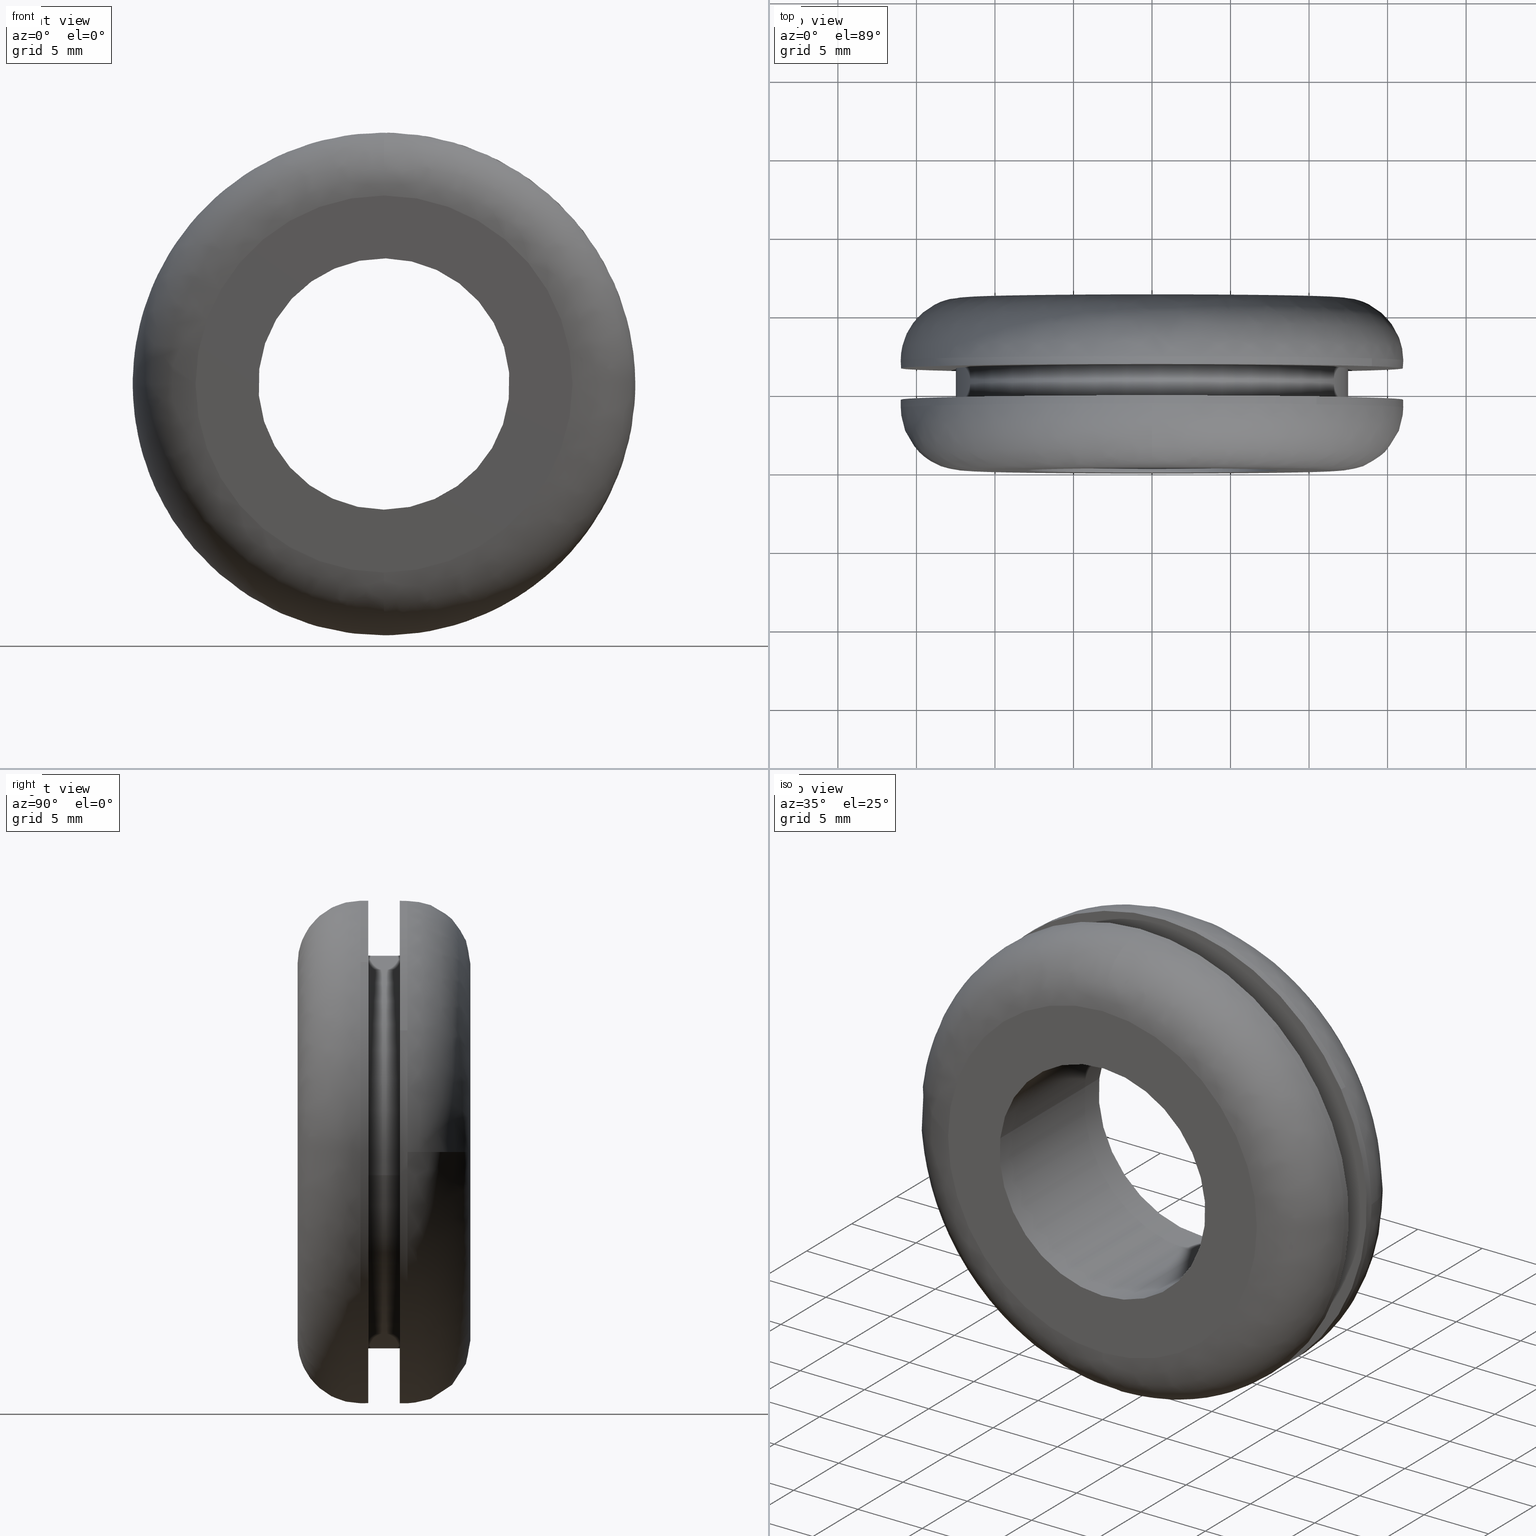
[diagram: canonical four-view strip — front | top / right | iso, engineering-drawing reading convention]
A machine part, canonical four-view strip (front | top / right | iso — engineering-drawing reading convention). The complete STEP part file that produces these views, byte-faithful:
ISO-10303-21;
HEADER;

FILE_DESCRIPTION( (''), '2;1');
FILE_NAME ('PC50.12492.TM_B_16_2_CRUL_4854.stp','2019-12-19T13:44:46',(''),(''),'spGate 15.6.1','','');

FILE_SCHEMA (('AUTOMOTIVE_DESIGN'));
ENDSEC;

DATA;
#10=(GEOMETRIC_REPRESENTATION_CONTEXT(3) GLOBAL_UNCERTAINTY_ASSIGNED_CONTEXT((#11)) GLOBAL_UNIT_ASSIGNED_CONTEXT((#12,#13,#14)) REPRESENTATION_CONTEXT('ID1','3D'));
#11=UNCERTAINTY_MEASURE_WITH_UNIT(LENGTH_MEASURE(0.01),#15,'DISTANCE_ACCURACY_VALUE','Maximum model space distance between geometric entities at asserted connectivities');
#12=(NAMED_UNIT(*) SI_UNIT($,.STERADIAN.) SOLID_ANGLE_UNIT());
#13=(CONVERSION_BASED_UNIT('DEGREE',#16) NAMED_UNIT(#17) PLANE_ANGLE_UNIT());
#14=(LENGTH_UNIT() NAMED_UNIT(*) SI_UNIT(.MILLI.,.METRE.));
#15=(LENGTH_UNIT() NAMED_UNIT(*) SI_UNIT(.MILLI.,.METRE.));
#16=PLANE_ANGLE_MEASURE_WITH_UNIT(PLANE_ANGLE_MEASURE(0.01745329252),#18);
#17=DIMENSIONAL_EXPONENTS(0.0,0.0,0.0,0.0,0.0,0.0,0.0);
#18=(NAMED_UNIT(*) PLANE_ANGLE_UNIT() SI_UNIT($,.RADIAN.));
#19=MANIFOLD_SOLID_BREP('TM_B_16_2',#31);
#20=ADVANCED_BREP_SHAPE_REPRESENTATION('',(#19),#10);
#21=APPLICATION_CONTEXT('');
#22=APPLICATION_PROTOCOL_DEFINITION('International Standard','automotive_design',1999,#21);
#23=PRODUCT_DEFINITION_CONTEXT('',#21,'design');
#24=PRODUCT_CONTEXT('',#21,'mechanical');
#25=PRODUCT('','','',(#24));
#26=PRODUCT_DEFINITION_FORMATION_WITH_SPECIFIED_SOURCE('','',#25,.NOT_KNOWN.);
#27=PRODUCT_RELATED_PRODUCT_CATEGORY('tool','tool',(#25));
#28=PRODUCT_DEFINITION('','',#26,#23);
#29=PRODUCT_DEFINITION_SHAPE('','',#28);
#30=SHAPE_DEFINITION_REPRESENTATION(#29,#20);
#31=CLOSED_SHELL('',(#40,#41,#42,#43,#44,#45,#46,#47,#48,#49,#50,#51,#52,#53,#54,#55));
#32=COLOUR_RGB('',0.00000000000E+000,0.00000000000E+000,0.00000000000E+000);
#33=FILL_AREA_STYLE_COLOUR('',#32);
#34=FILL_AREA_STYLE('',(#33));
#35=SURFACE_STYLE_FILL_AREA(#34);
#36=SURFACE_SIDE_STYLE('',(#35));
#37=SURFACE_STYLE_USAGE(.BOTH.,#36);
#38=PRESENTATION_STYLE_ASSIGNMENT((#37));
#39=STYLED_ITEM('',(#38),#19);
#40=ADVANCED_FACE('',(#57,#58),#56,.F.);
#41=ADVANCED_FACE('',(#68,#69),#67,.F.);
#42=ADVANCED_FACE('',(#79,#80),#78,.F.);
#43=ADVANCED_FACE('',(#90,#91),#89,.F.);
#44=ADVANCED_FACE('',(#101),#100,.T.);
#45=ADVANCED_FACE('',(#111),#110,.T.);
#46=ADVANCED_FACE('',(#121),#120,.T.);
#47=ADVANCED_FACE('',(#131),#130,.T.);
#48=ADVANCED_FACE('',(#141),#140,.F.);
#49=ADVANCED_FACE('',(#151),#150,.F.);
#50=ADVANCED_FACE('',(#161),#160,.T.);
#51=ADVANCED_FACE('',(#171),#170,.T.);
#52=ADVANCED_FACE('',(#181),#180,.T.);
#53=ADVANCED_FACE('',(#191),#190,.T.);
#54=ADVANCED_FACE('',(#201),#200,.T.);
#55=ADVANCED_FACE('',(#211),#210,.T.);
#56=PLANE('',#223);
#57=FACE_OUTER_BOUND('',#224,.T.);
#58=FACE_BOUND('',#225,.T.);
#59=COLOUR_RGB('',1.00000000000E+000,1.00000000000E+000,1.00000000000E+000);
#60=FILL_AREA_STYLE_COLOUR('',#59);
#61=FILL_AREA_STYLE('',(#60));
#62=SURFACE_STYLE_FILL_AREA(#61);
#63=SURFACE_SIDE_STYLE('',(#62));
#64=SURFACE_STYLE_USAGE(.BOTH.,#63);
#65=PRESENTATION_STYLE_ASSIGNMENT((#64));
#66=STYLED_ITEM('',(#65),#40);
#67=PLANE('',#229);
#68=FACE_OUTER_BOUND('',#230,.T.);
#69=FACE_BOUND('',#231,.T.);
#70=COLOUR_RGB('',1.00000000000E+000,1.00000000000E+000,1.00000000000E+000);
#71=FILL_AREA_STYLE_COLOUR('',#70);
#72=FILL_AREA_STYLE('',(#71));
#73=SURFACE_STYLE_FILL_AREA(#72);
#74=SURFACE_SIDE_STYLE('',(#73));
#75=SURFACE_STYLE_USAGE(.BOTH.,#74);
#76=PRESENTATION_STYLE_ASSIGNMENT((#75));
#77=STYLED_ITEM('',(#76),#41);
#78=PLANE('',#235);
#79=FACE_OUTER_BOUND('',#236,.T.);
#80=FACE_BOUND('',#237,.T.);
#81=COLOUR_RGB('',1.00000000000E+000,1.00000000000E+000,1.00000000000E+000);
#82=FILL_AREA_STYLE_COLOUR('',#81);
#83=FILL_AREA_STYLE('',(#82));
#84=SURFACE_STYLE_FILL_AREA(#83);
#85=SURFACE_SIDE_STYLE('',(#84));
#86=SURFACE_STYLE_USAGE(.BOTH.,#85);
#87=PRESENTATION_STYLE_ASSIGNMENT((#86));
#88=STYLED_ITEM('',(#87),#42);
#89=PLANE('',#241);
#90=FACE_OUTER_BOUND('',#242,.T.);
#91=FACE_BOUND('',#243,.T.);
#92=COLOUR_RGB('',1.00000000000E+000,1.00000000000E+000,1.00000000000E+000);
#93=FILL_AREA_STYLE_COLOUR('',#92);
#94=FILL_AREA_STYLE('',(#93));
#95=SURFACE_STYLE_FILL_AREA(#94);
#96=SURFACE_SIDE_STYLE('',(#95));
#97=SURFACE_STYLE_USAGE(.BOTH.,#96);
#98=PRESENTATION_STYLE_ASSIGNMENT((#97));
#99=STYLED_ITEM('',(#98),#43);
#100=CYLINDRICAL_SURFACE('',#247,1.60000000000E+001);
#101=FACE_OUTER_BOUND('',#248,.T.);
#102=COLOUR_RGB('',1.00000000000E+000,1.00000000000E+000,1.00000000000E+000);
#103=FILL_AREA_STYLE_COLOUR('',#102);
#104=FILL_AREA_STYLE('',(#103));
#105=SURFACE_STYLE_FILL_AREA(#104);
#106=SURFACE_SIDE_STYLE('',(#105));
#107=SURFACE_STYLE_USAGE(.BOTH.,#106);
#108=PRESENTATION_STYLE_ASSIGNMENT((#107));
#109=STYLED_ITEM('',(#108),#44);
#110=CYLINDRICAL_SURFACE('',#252,1.60000000000E+001);
#111=FACE_OUTER_BOUND('',#253,.T.);
#112=COLOUR_RGB('',1.00000000000E+000,1.00000000000E+000,1.00000000000E+000);
#113=FILL_AREA_STYLE_COLOUR('',#112);
#114=FILL_AREA_STYLE('',(#113));
#115=SURFACE_STYLE_FILL_AREA(#114);
#116=SURFACE_SIDE_STYLE('',(#115));
#117=SURFACE_STYLE_USAGE(.BOTH.,#116);
#118=PRESENTATION_STYLE_ASSIGNMENT((#117));
#119=STYLED_ITEM('',(#118),#45);
#120=CYLINDRICAL_SURFACE('',#257,1.25000000000E+001);
#121=FACE_OUTER_BOUND('',#258,.T.);
#122=COLOUR_RGB('',1.00000000000E+000,1.00000000000E+000,1.00000000000E+000);
#123=FILL_AREA_STYLE_COLOUR('',#122);
#124=FILL_AREA_STYLE('',(#123));
#125=SURFACE_STYLE_FILL_AREA(#124);
#126=SURFACE_SIDE_STYLE('',(#125));
#127=SURFACE_STYLE_USAGE(.BOTH.,#126);
#128=PRESENTATION_STYLE_ASSIGNMENT((#127));
#129=STYLED_ITEM('',(#128),#46);
#130=CYLINDRICAL_SURFACE('',#262,1.25000000000E+001);
#131=FACE_OUTER_BOUND('',#263,.T.);
#132=COLOUR_RGB('',1.00000000000E+000,1.00000000000E+000,1.00000000000E+000);
#133=FILL_AREA_STYLE_COLOUR('',#132);
#134=FILL_AREA_STYLE('',(#133));
#135=SURFACE_STYLE_FILL_AREA(#134);
#136=SURFACE_SIDE_STYLE('',(#135));
#137=SURFACE_STYLE_USAGE(.BOTH.,#136);
#138=PRESENTATION_STYLE_ASSIGNMENT((#137));
#139=STYLED_ITEM('',(#138),#47);
#140=CYLINDRICAL_SURFACE('',#267,8.00000000000E+000);
#141=FACE_OUTER_BOUND('',#268,.T.);
#142=COLOUR_RGB('',1.00000000000E+000,1.00000000000E+000,1.00000000000E+000);
#143=FILL_AREA_STYLE_COLOUR('',#142);
#144=FILL_AREA_STYLE('',(#143));
#145=SURFACE_STYLE_FILL_AREA(#144);
#146=SURFACE_SIDE_STYLE('',(#145));
#147=SURFACE_STYLE_USAGE(.BOTH.,#146);
#148=PRESENTATION_STYLE_ASSIGNMENT((#147));
#149=STYLED_ITEM('',(#148),#48);
#150=CYLINDRICAL_SURFACE('',#272,8.00000000000E+000);
#151=FACE_OUTER_BOUND('',#273,.T.);
#152=COLOUR_RGB('',1.00000000000E+000,1.00000000000E+000,1.00000000000E+000);
#153=FILL_AREA_STYLE_COLOUR('',#152);
#154=FILL_AREA_STYLE('',(#153));
#155=SURFACE_STYLE_FILL_AREA(#154);
#156=SURFACE_SIDE_STYLE('',(#155));
#157=SURFACE_STYLE_USAGE(.BOTH.,#156);
#158=PRESENTATION_STYLE_ASSIGNMENT((#157));
#159=STYLED_ITEM('',(#158),#49);
#160=CYLINDRICAL_SURFACE('',#277,1.60000000000E+001);
#161=FACE_OUTER_BOUND('',#278,.T.);
#162=COLOUR_RGB('',1.00000000000E+000,1.00000000000E+000,1.00000000000E+000);
#163=FILL_AREA_STYLE_COLOUR('',#162);
#164=FILL_AREA_STYLE('',(#163));
#165=SURFACE_STYLE_FILL_AREA(#164);
#166=SURFACE_SIDE_STYLE('',(#165));
#167=SURFACE_STYLE_USAGE(.BOTH.,#166);
#168=PRESENTATION_STYLE_ASSIGNMENT((#167));
#169=STYLED_ITEM('',(#168),#50);
#170=CYLINDRICAL_SURFACE('',#282,1.60000000000E+001);
#171=FACE_OUTER_BOUND('',#283,.T.);
#172=COLOUR_RGB('',1.00000000000E+000,1.00000000000E+000,1.00000000000E+000);
#173=FILL_AREA_STYLE_COLOUR('',#172);
#174=FILL_AREA_STYLE('',(#173));
#175=SURFACE_STYLE_FILL_AREA(#174);
#176=SURFACE_SIDE_STYLE('',(#175));
#177=SURFACE_STYLE_USAGE(.BOTH.,#176);
#178=PRESENTATION_STYLE_ASSIGNMENT((#177));
#179=STYLED_ITEM('',(#178),#51);
#180=( BOUNDED_SURFACE() B_SPLINE_SURFACE( 2,2,((#284,#285,#286,#287,#288),(#289,#290,#291,#292,#293),(#294,#295,#296,#297,#298),(#299,#300,#301,#302,#303),(#304,#305,#306,#307,#308)), .UNSPECIFIED.,.F.,.F.,.F.) B_SPLINE_SURFACE_WITH_KNOTS((3,2,3),(3,2,3),(0.00000000000E+000,5.00000000000E-001,1.00000000000E+000),(0.00000000000E+000,5.00000000000E-001,1.00000000000E+000), .UNSPECIFIED. ) GEOMETRIC_REPRESENTATION_ITEM() RATIONAL_B_SPLINE_SURFACE(((1.00000000000E+000,7.07106781087E-001,1.00000000000E+000,7.07106781087E-001,1.00000000000E+000),(7.07106781187E-001,4.99999999930E-001,7.07106781187E-001,4.99999999930E-001,7.07106781187E-001),(1.00000000000E+000,7.07106781087E-001,1.00000000000E+000,7.07106781087E-001,1.00000000000E+000),(7.07106781187E-001,4.99999999930E-001,7.07106781187E-001,4.99999999930E-001,7.07106781187E-001),(1.00000000000E+000,7.07106781087E-001,1.00000000000E+000,7.07106781087E-001,1.00000000000E+000))) REPRESENTATION_ITEM('') SURFACE() );
#181=FACE_OUTER_BOUND('',#309,.T.);
#182=COLOUR_RGB('',1.00000000000E+000,1.00000000000E+000,1.00000000000E+000);
#183=FILL_AREA_STYLE_COLOUR('',#182);
#184=FILL_AREA_STYLE('',(#183));
#185=SURFACE_STYLE_FILL_AREA(#184);
#186=SURFACE_SIDE_STYLE('',(#185));
#187=SURFACE_STYLE_USAGE(.BOTH.,#186);
#188=PRESENTATION_STYLE_ASSIGNMENT((#187));
#189=STYLED_ITEM('',(#188),#52);
#190=( BOUNDED_SURFACE() B_SPLINE_SURFACE( 2,2,((#310,#311,#312,#313,#314),(#315,#316,#317,#318,#319),(#320,#321,#322,#323,#324),(#325,#326,#327,#328,#329),(#330,#331,#332,#333,#334)), .UNSPECIFIED.,.F.,.F.,.F.) B_SPLINE_SURFACE_WITH_KNOTS((3,2,3),(3,2,3),(0.00000000000E+000,5.00000000000E-001,1.00000000000E+000),(0.00000000000E+000,5.00000000000E-001,1.00000000000E+000), .UNSPECIFIED. ) GEOMETRIC_REPRESENTATION_ITEM() RATIONAL_B_SPLINE_SURFACE(((1.00000000000E+000,7.07106781087E-001,1.00000000000E+000,7.07106781087E-001,1.00000000000E+000),(7.07106781187E-001,4.99999999930E-001,7.07106781187E-001,4.99999999930E-001,7.07106781187E-001),(1.00000000000E+000,7.07106781087E-001,1.00000000000E+000,7.07106781087E-001,1.00000000000E+000),(7.07106781187E-001,4.99999999930E-001,7.07106781187E-001,4.99999999930E-001,7.07106781187E-001),(1.00000000000E+000,7.07106781087E-001,1.00000000000E+000,7.07106781087E-001,1.00000000000E+000))) REPRESENTATION_ITEM('') SURFACE() );
#191=FACE_OUTER_BOUND('',#335,.T.);
#192=COLOUR_RGB('',1.00000000000E+000,1.00000000000E+000,1.00000000000E+000);
#193=FILL_AREA_STYLE_COLOUR('',#192);
#194=FILL_AREA_STYLE('',(#193));
#195=SURFACE_STYLE_FILL_AREA(#194);
#196=SURFACE_SIDE_STYLE('',(#195));
#197=SURFACE_STYLE_USAGE(.BOTH.,#196);
#198=PRESENTATION_STYLE_ASSIGNMENT((#197));
#199=STYLED_ITEM('',(#198),#53);
#200=( BOUNDED_SURFACE() B_SPLINE_SURFACE( 2,2,((#336,#337,#338,#339,#340),(#341,#342,#343,#344,#345),(#346,#347,#348,#349,#350),(#351,#352,#353,#354,#355),(#356,#357,#358,#359,#360)), .UNSPECIFIED.,.F.,.F.,.F.) B_SPLINE_SURFACE_WITH_KNOTS((3,2,3),(3,2,3),(0.00000000000E+000,5.00000000000E-001,1.00000000000E+000),(0.00000000000E+000,5.00000000000E-001,1.00000000000E+000), .UNSPECIFIED. ) GEOMETRIC_REPRESENTATION_ITEM() RATIONAL_B_SPLINE_SURFACE(((1.00000000000E+000,7.07106780924E-001,1.00000000000E+000,7.07106780924E-001,1.00000000000E+000),(7.07106781187E-001,4.99999999814E-001,7.07106781187E-001,4.99999999814E-001,7.07106781187E-001),(1.00000000000E+000,7.07106780924E-001,1.00000000000E+000,7.07106780924E-001,1.00000000000E+000),(7.07106781187E-001,4.99999999814E-001,7.07106781187E-001,4.99999999814E-001,7.07106781187E-001),(1.00000000000E+000,7.07106780924E-001,1.00000000000E+000,7.07106780924E-001,1.00000000000E+000))) REPRESENTATION_ITEM('') SURFACE() );
#201=FACE_OUTER_BOUND('',#361,.T.);
#202=COLOUR_RGB('',1.00000000000E+000,1.00000000000E+000,1.00000000000E+000);
#203=FILL_AREA_STYLE_COLOUR('',#202);
#204=FILL_AREA_STYLE('',(#203));
#205=SURFACE_STYLE_FILL_AREA(#204);
#206=SURFACE_SIDE_STYLE('',(#205));
#207=SURFACE_STYLE_USAGE(.BOTH.,#206);
#208=PRESENTATION_STYLE_ASSIGNMENT((#207));
#209=STYLED_ITEM('',(#208),#54);
#210=( BOUNDED_SURFACE() B_SPLINE_SURFACE( 2,2,((#362,#363,#364,#365,#366),(#367,#368,#369,#370,#371),(#372,#373,#374,#375,#376),(#377,#378,#379,#380,#381),(#382,#383,#384,#385,#386)), .UNSPECIFIED.,.F.,.F.,.F.) B_SPLINE_SURFACE_WITH_KNOTS((3,2,3),(3,2,3),(0.00000000000E+000,5.00000000000E-001,1.00000000000E+000),(0.00000000000E+000,5.00000000000E-001,1.00000000000E+000), .UNSPECIFIED. ) GEOMETRIC_REPRESENTATION_ITEM() RATIONAL_B_SPLINE_SURFACE(((1.00000000000E+000,7.07106780924E-001,1.00000000000E+000,7.07106780924E-001,1.00000000000E+000),(7.07106781187E-001,4.99999999814E-001,7.07106781187E-001,4.99999999814E-001,7.07106781187E-001),(1.00000000000E+000,7.07106780924E-001,1.00000000000E+000,7.07106780924E-001,1.00000000000E+000),(7.07106781187E-001,4.99999999814E-001,7.07106781187E-001,4.99999999814E-001,7.07106781187E-001),(1.00000000000E+000,7.07106780924E-001,1.00000000000E+000,7.07106780924E-001,1.00000000000E+000))) REPRESENTATION_ITEM('') SURFACE() );
#211=FACE_OUTER_BOUND('',#387,.T.);
#212=COLOUR_RGB('',1.00000000000E+000,1.00000000000E+000,1.00000000000E+000);
#213=FILL_AREA_STYLE_COLOUR('',#212);
#214=FILL_AREA_STYLE('',(#213));
#215=SURFACE_STYLE_FILL_AREA(#214);
#216=SURFACE_SIDE_STYLE('',(#215));
#217=SURFACE_STYLE_USAGE(.BOTH.,#216);
#218=PRESENTATION_STYLE_ASSIGNMENT((#217));
#219=STYLED_ITEM('',(#218),#55);
#220=CARTESIAN_POINT('',(-3.65275098356E+001,4.50000000000E+000,3.59301270626E+001));
#221=DIRECTION('',(0.00000000000E+000,-1.00000000000E+000,0.00000000000E+000));
#222=DIRECTION('',(0.00000000000E+000,0.00000000000E+000,-1.00000000000E+000));
#223=AXIS2_PLACEMENT_3D('',#220,#221,#222);
#224=EDGE_LOOP('',(#388,#389,#390));
#225=EDGE_LOOP('',(#391,#392,#393));
#226=CARTESIAN_POINT('',(-3.32553777086E+001,6.50000000000E+000,-2.08000032235E+001));
#227=DIRECTION('',(0.00000000000E+000,1.00000000000E+000,0.00000000000E+000));
#228=DIRECTION('',(0.00000000000E+000,0.00000000000E+000,1.00000000000E+000));
#229=AXIS2_PLACEMENT_3D('',#226,#227,#228);
#230=EDGE_LOOP('',(#394,#395,#396));
#231=EDGE_LOOP('',(#397,#398,#399));
#232=CARTESIAN_POINT('',(-2.49415316305E+001,1.10000000000E+001,2.76000000010E+001));
#233=DIRECTION('',(0.00000000000E+000,-1.00000000000E+000,0.00000000000E+000));
#234=DIRECTION('',(0.00000000000E+000,0.00000000000E+000,-1.00000000000E+000));
#235=AXIS2_PLACEMENT_3D('',#232,#233,#234);
#236=EDGE_LOOP('',(#400,#401,#402));
#237=EDGE_LOOP('',(#403,#404,#405));
#238=CARTESIAN_POINT('',(-2.49415316295E+001,-1.84498700000E-015,-2.76000000003E+001));
#239=DIRECTION('',(0.00000000000E+000,1.00000000000E+000,0.00000000000E+000));
#240=DIRECTION('',(0.00000000000E+000,0.00000000000E+000,1.00000000000E+000));
#241=AXIS2_PLACEMENT_3D('',#238,#239,#240);
#242=EDGE_LOOP('',(#406,#407));
#243=EDGE_LOOP('',(#408,#409,#410));
#244=CARTESIAN_POINT('',(-3.55271367880E-015,4.51250000000E+000,-1.24900090270E-015));
#245=DIRECTION('',(-0.00000000000E+000,1.00000000000E+000,0.00000000000E+000));
#246=DIRECTION('',(6.54339657003E-001,-0.00000000000E+000,7.56200775769E-001));
#247=AXIS2_PLACEMENT_3D('',#244,#245,#246);
#248=EDGE_LOOP('',(#411,#412,#413,#414,#415,#416));
#249=CARTESIAN_POINT('',(-3.55271367880E-015,4.51250000000E+000,-1.24900090270E-015));
#250=DIRECTION('',(-0.00000000000E+000,1.00000000000E+000,0.00000000000E+000));
#251=DIRECTION('',(6.54339657003E-001,-0.00000000000E+000,7.56200775769E-001));
#252=AXIS2_PLACEMENT_3D('',#249,#250,#251);
#253=EDGE_LOOP('',(#417,#418,#419,#420,#421,#422,#423));
#254=CARTESIAN_POINT('',(-9.46724408786E-016,6.55000000000E+000,1.08825827636E-015));
#255=DIRECTION('',(8.29704060878E-017,1.00000000000E+000,1.30000145868E-015));
#256=DIRECTION('',(-9.93009526364E-001,-7.10542735760E-017,1.18034234657E-001));
#257=AXIS2_PLACEMENT_3D('',#254,#255,#256);
#258=EDGE_LOOP('',(#424,#425,#426,#427));
#259=CARTESIAN_POINT('',(-9.46724408786E-016,6.55000000000E+000,1.08825827636E-015));
#260=DIRECTION('',(8.29704060878E-017,1.00000000000E+000,1.30000145868E-015));
#261=DIRECTION('',(-9.93009526364E-001,-7.10542735760E-017,1.18034234657E-001));
#262=AXIS2_PLACEMENT_3D('',#259,#260,#261);
#263=EDGE_LOOP('',(#428,#429,#430,#431,#432,#433));
#264=CARTESIAN_POINT('',(1.23418033852E-014,1.12750000000E+001,1.17706449627E-013));
#265=DIRECTION('',(2.20908782232E-015,1.00000000000E+000,2.04660102562E-014));
#266=DIRECTION('',(-9.93009526364E-001,-2.22044604925E-016,1.18034234657E-001));
#267=AXIS2_PLACEMENT_3D('',#264,#265,#266);
#268=EDGE_LOOP('',(#434,#435,#436,#437));
#269=CARTESIAN_POINT('',(1.23418033852E-014,1.12750000000E+001,1.17706449627E-013));
#270=DIRECTION('',(2.20908782232E-015,1.00000000000E+000,2.04660102562E-014));
#271=DIRECTION('',(-9.93009526364E-001,-2.22044604925E-016,1.18034234657E-001));
#272=AXIS2_PLACEMENT_3D('',#269,#270,#271);
#273=EDGE_LOOP('',(#438,#439,#440,#441,#442,#443));
#274=CARTESIAN_POINT('',(-1.13503726699E-015,7.01250000004E+000,4.48373563922E-017));
#275=DIRECTION('',(-9.44742124484E-017,1.00000000000E+000,1.70707365192E-016));
#276=DIRECTION('',(-8.74946427443E-001,1.23259516441E-032,-4.84219732254E-001));
#277=AXIS2_PLACEMENT_3D('',#274,#275,#276);
#278=EDGE_LOOP('',(#444,#445,#446,#447,#448,#449));
#279=CARTESIAN_POINT('',(-1.13503726699E-015,7.01250000004E+000,4.48373563922E-017));
#280=DIRECTION('',(-9.44742124484E-017,1.00000000000E+000,1.70707365192E-016));
#281=DIRECTION('',(-8.74946427443E-001,1.23259516441E-032,-4.84219732254E-001));
#282=AXIS2_PLACEMENT_3D('',#279,#280,#281);
#283=EDGE_LOOP('',(#450,#451,#452,#453,#454,#455,#456,#457));
#284=CARTESIAN_POINT('',(-6.47125199615E-020,4.00000000000E+000,-1.60000000000E+001));
#285=CARTESIAN_POINT('',(-6.47125199615E-020,-1.12293138268E-009,-1.60000000000E+001));
#286=CARTESIAN_POINT('',(-4.85343899666E-020,4.44089209850E-015,-1.19999999989E+001));
#287=CARTESIAN_POINT('',(-3.23562599717E-020,1.12293954716E-009,-7.99999999775E+000));
#288=CARTESIAN_POINT('',(-3.23562599808E-020,4.00000000225E+000,-8.00000000000E+000));
#289=CARTESIAN_POINT('',(1.60000000000E+001,4.00000000000E+000,-1.60000000000E+001));
#290=CARTESIAN_POINT('',(1.60000000000E+001,-1.12293138268E-009,-1.60000000000E+001));
#291=CARTESIAN_POINT('',(1.19999999989E+001,4.44089209850E-015,-1.19999999989E+001));
#292=CARTESIAN_POINT('',(7.99999999775E+000,1.12293954716E-009,-7.99999999775E+000));
#293=CARTESIAN_POINT('',(8.00000000000E+000,4.00000000225E+000,-8.00000000000E+000));
#294=CARTESIAN_POINT('',(1.60000000000E+001,4.00000000000E+000,-1.74596551736E-014));
#295=CARTESIAN_POINT('',(1.60000000000E+001,-1.12293138268E-009,-1.74596551736E-014));
#296=CARTESIAN_POINT('',(1.19999999989E+001,4.44089209850E-015,-1.72147096356E-014));
#297=CARTESIAN_POINT('',(7.99999999775E+000,1.12293954716E-009,-1.69697640976E-014));
#298=CARTESIAN_POINT('',(8.00000000000E+000,4.00000000225E+000,-1.69697640977E-014));
#299=CARTESIAN_POINT('',(1.60000000000E+001,4.00000000000E+000,1.60000000000E+001));
#300=CARTESIAN_POINT('',(1.60000000000E+001,-1.12293138268E-009,1.60000000000E+001));
#301=CARTESIAN_POINT('',(1.19999999989E+001,4.44089209850E-015,1.19999999989E+001));
#302=CARTESIAN_POINT('',(7.99999999775E+000,1.12293954716E-009,7.99999999775E+000));
#303=CARTESIAN_POINT('',(8.00000000000E+000,4.00000000225E+000,8.00000000000E+000));
#304=CARTESIAN_POINT('',(1.95949959116E-015,4.00000000000E+000,1.60000000000E+001));
#305=CARTESIAN_POINT('',(1.95949959116E-015,-1.12293138268E-009,1.60000000000E+001));
#306=CARTESIAN_POINT('',(1.46962469323E-015,4.44089209850E-015,1.19999999989E+001));
#307=CARTESIAN_POINT('',(9.79749795303E-016,1.12293954716E-009,7.99999999775E+000));
#308=CARTESIAN_POINT('',(9.79749795578E-016,4.00000000225E+000,8.00000000000E+000));
#309=EDGE_LOOP('',(#458,#459,#460,#461,#462,#463));
#310=CARTESIAN_POINT('',(1.95949959116E-015,4.00000000000E+000,1.60000000000E+001));
#311=CARTESIAN_POINT('',(1.95949959116E-015,-1.12293138268E-009,1.60000000000E+001));
#312=CARTESIAN_POINT('',(1.46962469323E-015,4.44089209850E-015,1.19999999989E+001));
#313=CARTESIAN_POINT('',(9.79749795303E-016,1.12293954716E-009,7.99999999775E+000));
#314=CARTESIAN_POINT('',(9.79749795578E-016,4.00000000225E+000,8.00000000000E+000));
#315=CARTESIAN_POINT('',(-1.60000000000E+001,4.00000000000E+000,1.60000000000E+001));
#316=CARTESIAN_POINT('',(-1.60000000000E+001,-1.12293138268E-009,1.60000000000E+001));
#317=CARTESIAN_POINT('',(-1.19999999989E+001,4.44089209850E-015,1.19999999989E+001));
#318=CARTESIAN_POINT('',(-7.99999999775E+000,1.12293954716E-009,7.99999999775E+000));
#319=CARTESIAN_POINT('',(-8.00000000000E+000,4.00000000225E+000,8.00000000000E+000));
#320=CARTESIAN_POINT('',(-1.60000000000E+001,4.00000000000E+000,-1.35406559913E-014));
#321=CARTESIAN_POINT('',(-1.60000000000E+001,-1.12293138268E-009,-1.35406559913E-014));
#322=CARTESIAN_POINT('',(-1.19999999989E+001,4.44089209850E-015,-1.42754602491E-014));
#323=CARTESIAN_POINT('',(-7.99999999775E+000,1.12293954716E-009,-1.50102645070E-014));
#324=CARTESIAN_POINT('',(-8.00000000000E+000,4.00000000225E+000,-1.50102645065E-014));
#325=CARTESIAN_POINT('',(-1.60000000000E+001,4.00000000000E+000,-1.60000000000E+001));
#326=CARTESIAN_POINT('',(-1.60000000000E+001,-1.12293138268E-009,-1.60000000000E+001));
#327=CARTESIAN_POINT('',(-1.19999999989E+001,4.44089209850E-015,-1.19999999989E+001));
#328=CARTESIAN_POINT('',(-7.99999999775E+000,1.12293954716E-009,-7.99999999775E+000));
#329=CARTESIAN_POINT('',(-8.00000000000E+000,4.00000000225E+000,-8.00000000000E+000));
#330=CARTESIAN_POINT('',(-3.91893446979E-015,4.00000000000E+000,-1.60000000000E+001));
#331=CARTESIAN_POINT('',(-3.91893446979E-015,-1.12293138268E-009,-1.60000000000E+001));
#332=CARTESIAN_POINT('',(-2.93920085207E-015,4.44089209850E-015,-1.19999999989E+001));
#333=CARTESIAN_POINT('',(-1.95946723435E-015,1.12293954716E-009,-7.99999999775E+000));
#334=CARTESIAN_POINT('',(-1.95946723490E-015,4.00000000225E+000,-8.00000000000E+000));
#335=EDGE_LOOP('',(#464,#465,#466,#467,#468,#469));
#336=CARTESIAN_POINT('',(-7.99999999998E+000,6.99999999405E+000,-3.52478029509E-013));
#337=CARTESIAN_POINT('',(-7.99999999403E+000,1.09999999970E+001,-2.81364560777E-013));
#338=CARTESIAN_POINT('',(-1.19999999970E+001,1.10000000000E+001,-2.81854403266E-013));
#339=CARTESIAN_POINT('',(-1.60000000000E+001,1.10000000030E+001,-2.82344245755E-013));
#340=CARTESIAN_POINT('',(-1.60000000000E+001,6.99999999999E+000,-3.53457714486E-013));
#341=CARTESIAN_POINT('',(-7.99999999998E+000,6.99999999405E+000,-7.99999999999E+000));
#342=CARTESIAN_POINT('',(-7.99999999403E+000,1.09999999970E+001,-7.99999999404E+000));
#343=CARTESIAN_POINT('',(-1.19999999970E+001,1.10000000000E+001,-1.19999999970E+001));
#344=CARTESIAN_POINT('',(-1.60000000000E+001,1.10000000030E+001,-1.60000000000E+001));
#345=CARTESIAN_POINT('',(-1.60000000000E+001,7.00000000000E+000,-1.60000000000E+001));
#346=CARTESIAN_POINT('',(1.01729082906E-011,6.99999999405E+000,-7.99999999999E+000));
#347=CARTESIAN_POINT('',(9.45221127215E-012,1.09999999970E+001,-7.99999999404E+000));
#348=CARTESIAN_POINT('',(9.45245618480E-012,1.10000000000E+001,-1.19999999970E+001));
#349=CARTESIAN_POINT('',(9.45270109745E-012,1.10000000030E+001,-1.60000000000E+001));
#350=CARTESIAN_POINT('',(1.01733981159E-011,7.00000000000E+000,-1.60000000000E+001));
#351=CARTESIAN_POINT('',(8.00000000000E+000,6.99999999405E+000,-7.99999999999E+000));
#352=CARTESIAN_POINT('',(7.99999999405E+000,1.09999999970E+001,-7.99999999404E+000));
#353=CARTESIAN_POINT('',(1.19999999970E+001,1.10000000000E+001,-1.19999999970E+001));
#354=CARTESIAN_POINT('',(1.60000000000E+001,1.10000000030E+001,-1.60000000000E+001));
#355=CARTESIAN_POINT('',(1.60000000000E+001,7.00000000000E+000,-1.60000000000E+001));
#356=CARTESIAN_POINT('',(8.00000000000E+000,6.99999999405E+000,-3.51498376782E-013));
#357=CARTESIAN_POINT('',(7.99999999405E+000,1.09999999970E+001,-2.80384908051E-013));
#358=CARTESIAN_POINT('',(1.19999999970E+001,1.10000000000E+001,-2.80384924176E-013));
#359=CARTESIAN_POINT('',(1.60000000000E+001,1.10000000030E+001,-2.80384940301E-013));
#360=CARTESIAN_POINT('',(1.60000000000E+001,7.00000000000E+000,-3.51498409032E-013));
#361=EDGE_LOOP('',(#470,#471,#472,#473,#474,#475,#476,#477));
#362=CARTESIAN_POINT('',(8.00000000000E+000,6.99999999405E+000,-3.51498376782E-013));
#363=CARTESIAN_POINT('',(7.99999999405E+000,1.09999999970E+001,-2.80384908051E-013));
#364=CARTESIAN_POINT('',(1.19999999970E+001,1.10000000000E+001,-2.80384924176E-013));
#365=CARTESIAN_POINT('',(1.60000000000E+001,1.10000000030E+001,-2.80384940301E-013));
#366=CARTESIAN_POINT('',(1.60000000000E+001,7.00000000000E+000,-3.51498409032E-013));
#367=CARTESIAN_POINT('',(8.00000000000E+000,6.99999999405E+000,7.99999999999E+000));
#368=CARTESIAN_POINT('',(7.99999999405E+000,1.09999999970E+001,7.99999999404E+000));
#369=CARTESIAN_POINT('',(1.19999999970E+001,1.10000000000E+001,1.19999999970E+001));
#370=CARTESIAN_POINT('',(1.60000000000E+001,1.10000000030E+001,1.60000000000E+001));
#371=CARTESIAN_POINT('',(1.60000000000E+001,7.00000000000E+000,1.60000000000E+001));
#372=CARTESIAN_POINT('',(1.01729083553E-011,6.99999999405E+000,7.99999999999E+000));
#373=CARTESIAN_POINT('',(9.45221133687E-012,1.09999999970E+001,7.99999999404E+000));
#374=CARTESIAN_POINT('',(9.45245628187E-012,1.10000000000E+001,1.19999999970E+001));
#375=CARTESIAN_POINT('',(9.45270122687E-012,1.10000000030E+001,1.60000000000E+001));
#376=CARTESIAN_POINT('',(1.01733982453E-011,7.00000000000E+000,1.60000000000E+001));
#377=CARTESIAN_POINT('',(-7.99999999998E+000,6.99999999405E+000,7.99999999999E+000));
#378=CARTESIAN_POINT('',(-7.99999999403E+000,1.09999999970E+001,7.99999999404E+000));
#379=CARTESIAN_POINT('',(-1.19999999970E+001,1.10000000000E+001,1.19999999970E+001));
#380=CARTESIAN_POINT('',(-1.60000000000E+001,1.10000000030E+001,1.60000000000E+001));
#381=CARTESIAN_POINT('',(-1.60000000000E+001,6.99999999999E+000,1.60000000000E+001));
#382=CARTESIAN_POINT('',(-7.99999999998E+000,6.99999999405E+000,-3.50518594630E-013));
#383=CARTESIAN_POINT('',(-7.99999999403E+000,1.09999999970E+001,-2.79405125900E-013));
#384=CARTESIAN_POINT('',(-1.19999999970E+001,1.10000000000E+001,-2.78915250949E-013));
#385=CARTESIAN_POINT('',(-1.60000000000E+001,1.10000000030E+001,-2.78425375998E-013));
#386=CARTESIAN_POINT('',(-1.60000000000E+001,6.99999999999E+000,-3.49538844729E-013));
#387=EDGE_LOOP('',(#478,#479,#480,#481,#482,#483));
#388=ORIENTED_EDGE('',*,*,#484,.F.);
#389=ORIENTED_EDGE('',*,*,#485,.F.);
#390=ORIENTED_EDGE('',*,*,#486,.F.);
#391=ORIENTED_EDGE('',*,*,#487,.T.);
#392=ORIENTED_EDGE('',*,*,#488,.T.);
#393=ORIENTED_EDGE('',*,*,#489,.T.);
#394=ORIENTED_EDGE('',*,*,#490,.T.);
#395=ORIENTED_EDGE('',*,*,#491,.T.);
#396=ORIENTED_EDGE('',*,*,#492,.T.);
#397=ORIENTED_EDGE('',*,*,#493,.F.);
#398=ORIENTED_EDGE('',*,*,#494,.F.);
#399=ORIENTED_EDGE('',*,*,#495,.F.);
#400=ORIENTED_EDGE('',*,*,#496,.F.);
#401=ORIENTED_EDGE('',*,*,#497,.F.);
#402=ORIENTED_EDGE('',*,*,#498,.F.);
#403=ORIENTED_EDGE('',*,*,#499,.T.);
#404=ORIENTED_EDGE('',*,*,#500,.T.);
#405=ORIENTED_EDGE('',*,*,#501,.T.);
#406=ORIENTED_EDGE('',*,*,#502,.T.);
#407=ORIENTED_EDGE('',*,*,#503,.T.);
#408=ORIENTED_EDGE('',*,*,#504,.F.);
#409=ORIENTED_EDGE('',*,*,#505,.F.);
#410=ORIENTED_EDGE('',*,*,#506,.F.);
#411=ORIENTED_EDGE('',*,*,#485,.T.);
#412=ORIENTED_EDGE('',*,*,#507,.F.);
#413=ORIENTED_EDGE('',*,*,#508,.F.);
#414=ORIENTED_EDGE('',*,*,#509,.F.);
#415=ORIENTED_EDGE('',*,*,#510,.F.);
#416=ORIENTED_EDGE('',*,*,#511,.T.);
#417=ORIENTED_EDGE('',*,*,#512,.F.);
#418=ORIENTED_EDGE('',*,*,#513,.F.);
#419=ORIENTED_EDGE('',*,*,#514,.F.);
#420=ORIENTED_EDGE('',*,*,#507,.T.);
#421=ORIENTED_EDGE('',*,*,#484,.T.);
#422=ORIENTED_EDGE('',*,*,#486,.T.);
#423=ORIENTED_EDGE('',*,*,#511,.F.);
#424=ORIENTED_EDGE('',*,*,#494,.T.);
#425=ORIENTED_EDGE('',*,*,#515,.F.);
#426=ORIENTED_EDGE('',*,*,#488,.F.);
#427=ORIENTED_EDGE('',*,*,#516,.T.);
#428=ORIENTED_EDGE('',*,*,#487,.F.);
#429=ORIENTED_EDGE('',*,*,#489,.F.);
#430=ORIENTED_EDGE('',*,*,#515,.T.);
#431=ORIENTED_EDGE('',*,*,#493,.T.);
#432=ORIENTED_EDGE('',*,*,#495,.T.);
#433=ORIENTED_EDGE('',*,*,#516,.F.);
#434=ORIENTED_EDGE('',*,*,#505,.T.);
#435=ORIENTED_EDGE('',*,*,#517,.T.);
#436=ORIENTED_EDGE('',*,*,#500,.F.);
#437=ORIENTED_EDGE('',*,*,#518,.F.);
#438=ORIENTED_EDGE('',*,*,#499,.F.);
#439=ORIENTED_EDGE('',*,*,#501,.F.);
#440=ORIENTED_EDGE('',*,*,#517,.F.);
#441=ORIENTED_EDGE('',*,*,#504,.T.);
#442=ORIENTED_EDGE('',*,*,#506,.T.);
#443=ORIENTED_EDGE('',*,*,#518,.T.);
#444=ORIENTED_EDGE('',*,*,#519,.T.);
#445=ORIENTED_EDGE('',*,*,#520,.T.);
#446=ORIENTED_EDGE('',*,*,#521,.T.);
#447=ORIENTED_EDGE('',*,*,#522,.F.);
#448=ORIENTED_EDGE('',*,*,#491,.F.);
#449=ORIENTED_EDGE('',*,*,#523,.T.);
#450=ORIENTED_EDGE('',*,*,#490,.F.);
#451=ORIENTED_EDGE('',*,*,#492,.F.);
#452=ORIENTED_EDGE('',*,*,#522,.T.);
#453=ORIENTED_EDGE('',*,*,#524,.T.);
#454=ORIENTED_EDGE('',*,*,#525,.T.);
#455=ORIENTED_EDGE('',*,*,#526,.T.);
#456=ORIENTED_EDGE('',*,*,#527,.T.);
#457=ORIENTED_EDGE('',*,*,#523,.F.);
#458=ORIENTED_EDGE('',*,*,#503,.F.);
#459=ORIENTED_EDGE('',*,*,#528,.F.);
#460=ORIENTED_EDGE('',*,*,#509,.T.);
#461=ORIENTED_EDGE('',*,*,#508,.T.);
#462=ORIENTED_EDGE('',*,*,#514,.T.);
#463=ORIENTED_EDGE('',*,*,#529,.T.);
#464=ORIENTED_EDGE('',*,*,#513,.T.);
#465=ORIENTED_EDGE('',*,*,#512,.T.);
#466=ORIENTED_EDGE('',*,*,#510,.T.);
#467=ORIENTED_EDGE('',*,*,#528,.T.);
#468=ORIENTED_EDGE('',*,*,#502,.F.);
#469=ORIENTED_EDGE('',*,*,#529,.F.);
#470=ORIENTED_EDGE('',*,*,#526,.F.);
#471=ORIENTED_EDGE('',*,*,#525,.F.);
#472=ORIENTED_EDGE('',*,*,#524,.F.);
#473=ORIENTED_EDGE('',*,*,#521,.F.);
#474=ORIENTED_EDGE('',*,*,#530,.F.);
#475=ORIENTED_EDGE('',*,*,#496,.T.);
#476=ORIENTED_EDGE('',*,*,#498,.T.);
#477=ORIENTED_EDGE('',*,*,#531,.T.);
#478=ORIENTED_EDGE('',*,*,#497,.T.);
#479=ORIENTED_EDGE('',*,*,#530,.T.);
#480=ORIENTED_EDGE('',*,*,#520,.F.);
#481=ORIENTED_EDGE('',*,*,#519,.F.);
#482=ORIENTED_EDGE('',*,*,#527,.F.);
#483=ORIENTED_EDGE('',*,*,#531,.F.);
#484=EDGE_CURVE('',#532,#533,#534,.T.);
#485=EDGE_CURVE('',#540,#532,#541,.T.);
#486=EDGE_CURVE('',#533,#540,#547,.T.);
#487=EDGE_CURVE('',#553,#554,#555,.T.);
#488=EDGE_CURVE('',#554,#561,#562,.T.);
#489=EDGE_CURVE('',#561,#553,#568,.T.);
#490=EDGE_CURVE('',#574,#575,#576,.T.);
#491=EDGE_CURVE('',#575,#582,#583,.T.);
#492=EDGE_CURVE('',#582,#574,#589,.T.);
#493=EDGE_CURVE('',#595,#596,#597,.T.);
#494=EDGE_CURVE('',#603,#595,#604,.T.);
#495=EDGE_CURVE('',#596,#603,#610,.T.);
#496=EDGE_CURVE('',#616,#617,#618,.T.);
#497=EDGE_CURVE('',#624,#616,#625,.T.);
#498=EDGE_CURVE('',#617,#624,#631,.T.);
#499=EDGE_CURVE('',#637,#638,#639,.T.);
#500=EDGE_CURVE('',#638,#645,#646,.T.);
#501=EDGE_CURVE('',#645,#637,#652,.T.);
#502=EDGE_CURVE('',#658,#659,#660,.T.);
#503=EDGE_CURVE('',#659,#658,#666,.T.);
#504=EDGE_CURVE('',#672,#673,#674,.T.);
#505=EDGE_CURVE('',#680,#672,#681,.T.);
#506=EDGE_CURVE('',#673,#680,#687,.T.);
#507=EDGE_CURVE('',#693,#532,#694,.T.);
#508=EDGE_CURVE('',#700,#693,#701,.T.);
#509=EDGE_CURVE('',#707,#700,#708,.T.);
#510=EDGE_CURVE('',#714,#707,#715,.T.);
#511=EDGE_CURVE('',#714,#540,#721,.T.);
#512=EDGE_CURVE('',#727,#714,#728,.T.);
#513=EDGE_CURVE('',#734,#727,#735,.T.);
#514=EDGE_CURVE('',#693,#734,#741,.T.);
#515=EDGE_CURVE('',#561,#595,#747,.T.);
#516=EDGE_CURVE('',#554,#603,#753,.T.);
#517=EDGE_CURVE('',#672,#645,#759,.T.);
#518=EDGE_CURVE('',#680,#638,#765,.T.);
#519=EDGE_CURVE('',#771,#772,#773,.T.);
#520=EDGE_CURVE('',#772,#779,#780,.T.);
#521=EDGE_CURVE('',#779,#786,#787,.T.);
#522=EDGE_CURVE('',#582,#786,#793,.T.);
#523=EDGE_CURVE('',#575,#771,#799,.T.);
#524=EDGE_CURVE('',#786,#805,#806,.T.);
#525=EDGE_CURVE('',#805,#812,#813,.T.);
#526=EDGE_CURVE('',#812,#819,#820,.T.);
#527=EDGE_CURVE('',#819,#771,#826,.T.);
#528=EDGE_CURVE('',#707,#659,#832,.T.);
#529=EDGE_CURVE('',#734,#658,#838,.T.);
#530=EDGE_CURVE('',#616,#779,#844,.T.);
#531=EDGE_CURVE('',#624,#819,#850,.T.);
#532=VERTEX_POINT('',#856);
#533=VERTEX_POINT('',#857);
#534=CIRCLE('',#861,1.60000008999E+001);
#535=COLOUR_RGB('',1.00000000000E+000,1.00000000000E+000,1.00000000000E+000);
#536=DRAUGHTING_PRE_DEFINED_CURVE_FONT('continuous');
#537=CURVE_STYLE( '',#536, POSITIVE_LENGTH_MEASURE(1.00000000000E-006),#535);
#538=PRESENTATION_STYLE_ASSIGNMENT((#537));
#539=STYLED_ITEM('',(#538),#484);
#540=VERTEX_POINT('',#862);
#541=CIRCLE('',#866,1.60000008999E+001);
#542=COLOUR_RGB('',1.00000000000E+000,1.00000000000E+000,1.00000000000E+000);
#543=DRAUGHTING_PRE_DEFINED_CURVE_FONT('continuous');
#544=CURVE_STYLE( '',#543, POSITIVE_LENGTH_MEASURE(1.00000000000E-006),#542);
#545=PRESENTATION_STYLE_ASSIGNMENT((#544));
#546=STYLED_ITEM('',(#545),#485);
#547=CIRCLE('',#870,1.60000008999E+001);
#548=COLOUR_RGB('',1.00000000000E+000,1.00000000000E+000,1.00000000000E+000);
#549=DRAUGHTING_PRE_DEFINED_CURVE_FONT('continuous');
#550=CURVE_STYLE( '',#549, POSITIVE_LENGTH_MEASURE(1.00000000000E-006),#548);
#551=PRESENTATION_STYLE_ASSIGNMENT((#550));
#552=STYLED_ITEM('',(#551),#486);
#553=VERTEX_POINT('',#871);
#554=VERTEX_POINT('',#872);
#555=CIRCLE('',#876,1.25000000000E+001);
#556=COLOUR_RGB('',1.00000000000E+000,1.00000000000E+000,1.00000000000E+000);
#557=DRAUGHTING_PRE_DEFINED_CURVE_FONT('continuous');
#558=CURVE_STYLE( '',#557, POSITIVE_LENGTH_MEASURE(1.00000000000E-006),#556);
#559=PRESENTATION_STYLE_ASSIGNMENT((#558));
#560=STYLED_ITEM('',(#559),#487);
#561=VERTEX_POINT('',#877);
#562=CIRCLE('',#881,1.25000000000E+001);
#563=COLOUR_RGB('',1.00000000000E+000,1.00000000000E+000,1.00000000000E+000);
#564=DRAUGHTING_PRE_DEFINED_CURVE_FONT('continuous');
#565=CURVE_STYLE( '',#564, POSITIVE_LENGTH_MEASURE(1.00000000000E-006),#563);
#566=PRESENTATION_STYLE_ASSIGNMENT((#565));
#567=STYLED_ITEM('',(#566),#488);
#568=CIRCLE('',#885,1.25000000000E+001);
#569=COLOUR_RGB('',1.00000000000E+000,1.00000000000E+000,1.00000000000E+000);
#570=DRAUGHTING_PRE_DEFINED_CURVE_FONT('continuous');
#571=CURVE_STYLE( '',#570, POSITIVE_LENGTH_MEASURE(1.00000000000E-006),#569);
#572=PRESENTATION_STYLE_ASSIGNMENT((#571));
#573=STYLED_ITEM('',(#572),#489);
#574=VERTEX_POINT('',#886);
#575=VERTEX_POINT('',#887);
#576=CIRCLE('',#891,1.60000010600E+001);
#577=COLOUR_RGB('',1.00000000000E+000,1.00000000000E+000,1.00000000000E+000);
#578=DRAUGHTING_PRE_DEFINED_CURVE_FONT('continuous');
#579=CURVE_STYLE( '',#578, POSITIVE_LENGTH_MEASURE(1.00000000000E-006),#577);
#580=PRESENTATION_STYLE_ASSIGNMENT((#579));
#581=STYLED_ITEM('',(#580),#490);
#582=VERTEX_POINT('',#892);
#583=CIRCLE('',#896,1.60000010600E+001);
#584=COLOUR_RGB('',1.00000000000E+000,1.00000000000E+000,1.00000000000E+000);
#585=DRAUGHTING_PRE_DEFINED_CURVE_FONT('continuous');
#586=CURVE_STYLE( '',#585, POSITIVE_LENGTH_MEASURE(1.00000000000E-006),#584);
#587=PRESENTATION_STYLE_ASSIGNMENT((#586));
#588=STYLED_ITEM('',(#587),#491);
#589=CIRCLE('',#900,1.60000010600E+001);
#590=COLOUR_RGB('',1.00000000000E+000,1.00000000000E+000,1.00000000000E+000);
#591=DRAUGHTING_PRE_DEFINED_CURVE_FONT('continuous');
#592=CURVE_STYLE( '',#591, POSITIVE_LENGTH_MEASURE(1.00000000000E-006),#590);
#593=PRESENTATION_STYLE_ASSIGNMENT((#592));
#594=STYLED_ITEM('',(#593),#492);
#595=VERTEX_POINT('',#901);
#596=VERTEX_POINT('',#902);
#597=CIRCLE('',#906,1.25000000000E+001);
#598=COLOUR_RGB('',1.00000000000E+000,1.00000000000E+000,1.00000000000E+000);
#599=DRAUGHTING_PRE_DEFINED_CURVE_FONT('continuous');
#600=CURVE_STYLE( '',#599, POSITIVE_LENGTH_MEASURE(1.00000000000E-006),#598);
#601=PRESENTATION_STYLE_ASSIGNMENT((#600));
#602=STYLED_ITEM('',(#601),#493);
#603=VERTEX_POINT('',#907);
#604=CIRCLE('',#911,1.25000000000E+001);
#605=COLOUR_RGB('',1.00000000000E+000,1.00000000000E+000,1.00000000000E+000);
#606=DRAUGHTING_PRE_DEFINED_CURVE_FONT('continuous');
#607=CURVE_STYLE( '',#606, POSITIVE_LENGTH_MEASURE(1.00000000000E-006),#605);
#608=PRESENTATION_STYLE_ASSIGNMENT((#607));
#609=STYLED_ITEM('',(#608),#494);
#610=CIRCLE('',#915,1.25000000000E+001);
#611=COLOUR_RGB('',1.00000000000E+000,1.00000000000E+000,1.00000000000E+000);
#612=DRAUGHTING_PRE_DEFINED_CURVE_FONT('continuous');
#613=CURVE_STYLE( '',#612, POSITIVE_LENGTH_MEASURE(1.00000000000E-006),#611);
#614=PRESENTATION_STYLE_ASSIGNMENT((#613));
#615=STYLED_ITEM('',(#614),#495);
#616=VERTEX_POINT('',#916);
#617=VERTEX_POINT('',#917);
#618=CIRCLE('',#921,1.20000000007E+001);
#619=COLOUR_RGB('',1.00000000000E+000,1.00000000000E+000,1.00000000000E+000);
#620=DRAUGHTING_PRE_DEFINED_CURVE_FONT('continuous');
#621=CURVE_STYLE( '',#620, POSITIVE_LENGTH_MEASURE(1.00000000000E-006),#619);
#622=PRESENTATION_STYLE_ASSIGNMENT((#621));
#623=STYLED_ITEM('',(#622),#496);
#624=VERTEX_POINT('',#922);
#625=CIRCLE('',#926,1.20000000007E+001);
#626=COLOUR_RGB('',1.00000000000E+000,1.00000000000E+000,1.00000000000E+000);
#627=DRAUGHTING_PRE_DEFINED_CURVE_FONT('continuous');
#628=CURVE_STYLE( '',#627, POSITIVE_LENGTH_MEASURE(1.00000000000E-006),#626);
#629=PRESENTATION_STYLE_ASSIGNMENT((#628));
#630=STYLED_ITEM('',(#629),#497);
#631=CIRCLE('',#930,1.20000000007E+001);
#632=COLOUR_RGB('',1.00000000000E+000,1.00000000000E+000,1.00000000000E+000);
#633=DRAUGHTING_PRE_DEFINED_CURVE_FONT('continuous');
#634=CURVE_STYLE( '',#633, POSITIVE_LENGTH_MEASURE(1.00000000000E-006),#632);
#635=PRESENTATION_STYLE_ASSIGNMENT((#634));
#636=STYLED_ITEM('',(#635),#498);
#637=VERTEX_POINT('',#931);
#638=VERTEX_POINT('',#932);
#639=CIRCLE('',#936,8.00000000000E+000);
#640=COLOUR_RGB('',1.00000000000E+000,1.00000000000E+000,1.00000000000E+000);
#641=DRAUGHTING_PRE_DEFINED_CURVE_FONT('continuous');
#642=CURVE_STYLE( '',#641, POSITIVE_LENGTH_MEASURE(1.00000000000E-006),#640);
#643=PRESENTATION_STYLE_ASSIGNMENT((#642));
#644=STYLED_ITEM('',(#643),#499);
#645=VERTEX_POINT('',#937);
#646=CIRCLE('',#941,8.00000000000E+000);
#647=COLOUR_RGB('',1.00000000000E+000,1.00000000000E+000,1.00000000000E+000);
#648=DRAUGHTING_PRE_DEFINED_CURVE_FONT('continuous');
#649=CURVE_STYLE( '',#648, POSITIVE_LENGTH_MEASURE(1.00000000000E-006),#647);
#650=PRESENTATION_STYLE_ASSIGNMENT((#649));
#651=STYLED_ITEM('',(#650),#500);
#652=CIRCLE('',#945,8.00000000000E+000);
#653=COLOUR_RGB('',1.00000000000E+000,1.00000000000E+000,1.00000000000E+000);
#654=DRAUGHTING_PRE_DEFINED_CURVE_FONT('continuous');
#655=CURVE_STYLE( '',#654, POSITIVE_LENGTH_MEASURE(1.00000000000E-006),#653);
#656=PRESENTATION_STYLE_ASSIGNMENT((#655));
#657=STYLED_ITEM('',(#656),#501);
#658=VERTEX_POINT('',#946);
#659=VERTEX_POINT('',#947);
#660=CIRCLE('',#951,1.20000000002E+001);
#661=COLOUR_RGB('',1.00000000000E+000,1.00000000000E+000,1.00000000000E+000);
#662=DRAUGHTING_PRE_DEFINED_CURVE_FONT('continuous');
#663=CURVE_STYLE( '',#662, POSITIVE_LENGTH_MEASURE(1.00000000000E-006),#661);
#664=PRESENTATION_STYLE_ASSIGNMENT((#663));
#665=STYLED_ITEM('',(#664),#502);
#666=CIRCLE('',#955,1.20000000002E+001);
#667=COLOUR_RGB('',1.00000000000E+000,1.00000000000E+000,1.00000000000E+000);
#668=DRAUGHTING_PRE_DEFINED_CURVE_FONT('continuous');
#669=CURVE_STYLE( '',#668, POSITIVE_LENGTH_MEASURE(1.00000000000E-006),#667);
#670=PRESENTATION_STYLE_ASSIGNMENT((#669));
#671=STYLED_ITEM('',(#670),#503);
#672=VERTEX_POINT('',#956);
#673=VERTEX_POINT('',#957);
#674=CIRCLE('',#961,8.00000000000E+000);
#675=COLOUR_RGB('',1.00000000000E+000,1.00000000000E+000,1.00000000000E+000);
#676=DRAUGHTING_PRE_DEFINED_CURVE_FONT('continuous');
#677=CURVE_STYLE( '',#676, POSITIVE_LENGTH_MEASURE(1.00000000000E-006),#675);
#678=PRESENTATION_STYLE_ASSIGNMENT((#677));
#679=STYLED_ITEM('',(#678),#504);
#680=VERTEX_POINT('',#962);
#681=CIRCLE('',#966,8.00000000000E+000);
#682=COLOUR_RGB('',1.00000000000E+000,1.00000000000E+000,1.00000000000E+000);
#683=DRAUGHTING_PRE_DEFINED_CURVE_FONT('continuous');
#684=CURVE_STYLE( '',#683, POSITIVE_LENGTH_MEASURE(1.00000000000E-006),#682);
#685=PRESENTATION_STYLE_ASSIGNMENT((#684));
#686=STYLED_ITEM('',(#685),#505);
#687=CIRCLE('',#970,8.00000000000E+000);
#688=COLOUR_RGB('',1.00000000000E+000,1.00000000000E+000,1.00000000000E+000);
#689=DRAUGHTING_PRE_DEFINED_CURVE_FONT('continuous');
#690=CURVE_STYLE( '',#689, POSITIVE_LENGTH_MEASURE(1.00000000000E-006),#688);
#691=PRESENTATION_STYLE_ASSIGNMENT((#690));
#692=STYLED_ITEM('',(#691),#506);
#693=VERTEX_POINT('',#971);
#694=(BOUNDED_CURVE() B_SPLINE_CURVE(1,(#972,#973),.UNSPECIFIED.,.F.,.F.) B_SPLINE_CURVE_WITH_KNOTS((2,2),(8.33334128067E-002,9.16666680514E-001),.UNSPECIFIED.) CURVE() GEOMETRIC_REPRESENTATION_ITEM() RATIONAL_B_SPLINE_CURVE((1.00000000000E+000,1.00000000000E+000)) REPRESENTATION_ITEM('') );
#695=COLOUR_RGB('',1.00000000000E+000,1.00000000000E+000,1.00000000000E+000);
#696=DRAUGHTING_PRE_DEFINED_CURVE_FONT('continuous');
#697=CURVE_STYLE( '',#696, POSITIVE_LENGTH_MEASURE(1.00000000000E-006),#695);
#698=PRESENTATION_STYLE_ASSIGNMENT((#697));
#699=STYLED_ITEM('',(#698),#507);
#700=VERTEX_POINT('',#974);
#701=CIRCLE('',#978,1.60000000000E+001);
#702=COLOUR_RGB('',1.00000000000E+000,1.00000000000E+000,1.00000000000E+000);
#703=DRAUGHTING_PRE_DEFINED_CURVE_FONT('continuous');
#704=CURVE_STYLE( '',#703, POSITIVE_LENGTH_MEASURE(1.00000000000E-006),#702);
#705=PRESENTATION_STYLE_ASSIGNMENT((#704));
#706=STYLED_ITEM('',(#705),#508);
#707=VERTEX_POINT('',#979);
#708=CIRCLE('',#983,1.60000000000E+001);
#709=COLOUR_RGB('',1.00000000000E+000,1.00000000000E+000,1.00000000000E+000);
#710=DRAUGHTING_PRE_DEFINED_CURVE_FONT('continuous');
#711=CURVE_STYLE( '',#710, POSITIVE_LENGTH_MEASURE(1.00000000000E-006),#709);
#712=PRESENTATION_STYLE_ASSIGNMENT((#711));
#713=STYLED_ITEM('',(#712),#509);
#714=VERTEX_POINT('',#984);
#715=CIRCLE('',#988,1.60000000000E+001);
#716=COLOUR_RGB('',1.00000000000E+000,1.00000000000E+000,1.00000000000E+000);
#717=DRAUGHTING_PRE_DEFINED_CURVE_FONT('continuous');
#718=CURVE_STYLE( '',#717, POSITIVE_LENGTH_MEASURE(1.00000000000E-006),#716);
#719=PRESENTATION_STYLE_ASSIGNMENT((#718));
#720=STYLED_ITEM('',(#719),#510);
#721=(BOUNDED_CURVE() B_SPLINE_CURVE(1,(#989,#990),.UNSPECIFIED.,.F.,.F.) B_SPLINE_CURVE_WITH_KNOTS((2,2),(8.33333333571E-002,9.16666666666E-001),.UNSPECIFIED.) CURVE() GEOMETRIC_REPRESENTATION_ITEM() RATIONAL_B_SPLINE_CURVE((7.50000000000E-001,7.50000000000E-001)) REPRESENTATION_ITEM('') );
#722=COLOUR_RGB('',1.00000000000E+000,1.00000000000E+000,1.00000000000E+000);
#723=DRAUGHTING_PRE_DEFINED_CURVE_FONT('continuous');
#724=CURVE_STYLE( '',#723, POSITIVE_LENGTH_MEASURE(1.00000000000E-006),#722);
#725=PRESENTATION_STYLE_ASSIGNMENT((#724));
#726=STYLED_ITEM('',(#725),#511);
#727=VERTEX_POINT('',#991);
#728=CIRCLE('',#995,1.59999993462E+001);
#729=COLOUR_RGB('',1.00000000000E+000,1.00000000000E+000,1.00000000000E+000);
#730=DRAUGHTING_PRE_DEFINED_CURVE_FONT('continuous');
#731=CURVE_STYLE( '',#730, POSITIVE_LENGTH_MEASURE(1.00000000000E-006),#729);
#732=PRESENTATION_STYLE_ASSIGNMENT((#731));
#733=STYLED_ITEM('',(#732),#512);
#734=VERTEX_POINT('',#996);
#735=CIRCLE('',#1000,1.60000011083E+001);
#736=COLOUR_RGB('',1.00000000000E+000,1.00000000000E+000,1.00000000000E+000);
#737=DRAUGHTING_PRE_DEFINED_CURVE_FONT('continuous');
#738=CURVE_STYLE( '',#737, POSITIVE_LENGTH_MEASURE(1.00000000000E-006),#736);
#739=PRESENTATION_STYLE_ASSIGNMENT((#738));
#740=STYLED_ITEM('',(#739),#513);
#741=CIRCLE('',#1004,1.60000000000E+001);
#742=COLOUR_RGB('',1.00000000000E+000,1.00000000000E+000,1.00000000000E+000);
#743=DRAUGHTING_PRE_DEFINED_CURVE_FONT('continuous');
#744=CURVE_STYLE( '',#743, POSITIVE_LENGTH_MEASURE(1.00000000000E-006),#742);
#745=PRESENTATION_STYLE_ASSIGNMENT((#744));
#746=STYLED_ITEM('',(#745),#514);
#747=(BOUNDED_CURVE() B_SPLINE_CURVE(1,(#1005,#1006),.UNSPECIFIED.,.F.,.F.) B_SPLINE_CURVE_WITH_KNOTS((2,2),(8.33333532020E-002,9.16666656883E-001),.UNSPECIFIED.) CURVE() GEOMETRIC_REPRESENTATION_ITEM() RATIONAL_B_SPLINE_CURVE((1.00000000000E+000,1.00000000000E+000)) REPRESENTATION_ITEM('') );
#748=COLOUR_RGB('',1.00000000000E+000,1.00000000000E+000,1.00000000000E+000);
#749=DRAUGHTING_PRE_DEFINED_CURVE_FONT('continuous');
#750=CURVE_STYLE( '',#749, POSITIVE_LENGTH_MEASURE(1.00000000000E-006),#748);
#751=PRESENTATION_STYLE_ASSIGNMENT((#750));
#752=STYLED_ITEM('',(#751),#515);
#753=(BOUNDED_CURVE() B_SPLINE_CURVE(1,(#1007,#1008),.UNSPECIFIED.,.F.,.F.) B_SPLINE_CURVE_WITH_KNOTS((2,2),(8.33333333346E-002,9.16666666667E-001),.UNSPECIFIED.) CURVE() GEOMETRIC_REPRESENTATION_ITEM() RATIONAL_B_SPLINE_CURVE((7.50000000000E-001,7.50000000000E-001)) REPRESENTATION_ITEM('') );
#754=COLOUR_RGB('',1.00000000000E+000,1.00000000000E+000,1.00000000000E+000);
#755=DRAUGHTING_PRE_DEFINED_CURVE_FONT('continuous');
#756=CURVE_STYLE( '',#755, POSITIVE_LENGTH_MEASURE(1.00000000000E-006),#754);
#757=PRESENTATION_STYLE_ASSIGNMENT((#756));
#758=STYLED_ITEM('',(#757),#516);
#759=(BOUNDED_CURVE() B_SPLINE_CURVE(1,(#1009,#1010),.UNSPECIFIED.,.F.,.F.) B_SPLINE_CURVE_WITH_KNOTS((2,2),(8.33333343261E-002,9.16666667006E-001),.UNSPECIFIED.) CURVE() GEOMETRIC_REPRESENTATION_ITEM() RATIONAL_B_SPLINE_CURVE((1.00000000000E+000,1.00000000000E+000)) REPRESENTATION_ITEM('') );
#760=COLOUR_RGB('',1.00000000000E+000,1.00000000000E+000,1.00000000000E+000);
#761=DRAUGHTING_PRE_DEFINED_CURVE_FONT('continuous');
#762=CURVE_STYLE( '',#761, POSITIVE_LENGTH_MEASURE(1.00000000000E-006),#760);
#763=PRESENTATION_STYLE_ASSIGNMENT((#762));
#764=STYLED_ITEM('',(#763),#517);
#765=(BOUNDED_CURVE() B_SPLINE_CURVE(1,(#1011,#1012),.UNSPECIFIED.,.F.,.F.) B_SPLINE_CURVE_WITH_KNOTS((2,2),(8.33333333333E-002,9.16666666667E-001),.UNSPECIFIED.) CURVE() GEOMETRIC_REPRESENTATION_ITEM() RATIONAL_B_SPLINE_CURVE((7.50000000000E-001,7.50000000000E-001)) REPRESENTATION_ITEM('') );
#766=COLOUR_RGB('',1.00000000000E+000,1.00000000000E+000,1.00000000000E+000);
#767=DRAUGHTING_PRE_DEFINED_CURVE_FONT('continuous');
#768=CURVE_STYLE( '',#767, POSITIVE_LENGTH_MEASURE(1.00000000000E-006),#766);
#769=PRESENTATION_STYLE_ASSIGNMENT((#768));
#770=STYLED_ITEM('',(#769),#518);
#771=VERTEX_POINT('',#1013);
#772=VERTEX_POINT('',#1014);
#773=CIRCLE('',#1018,1.60000000000E+001);
#774=COLOUR_RGB('',1.00000000000E+000,1.00000000000E+000,1.00000000000E+000);
#775=DRAUGHTING_PRE_DEFINED_CURVE_FONT('continuous');
#776=CURVE_STYLE( '',#775, POSITIVE_LENGTH_MEASURE(1.00000000000E-006),#774);
#777=PRESENTATION_STYLE_ASSIGNMENT((#776));
#778=STYLED_ITEM('',(#777),#519);
#779=VERTEX_POINT('',#1019);
#780=CIRCLE('',#1023,1.60000000000E+001);
#781=COLOUR_RGB('',1.00000000000E+000,1.00000000000E+000,1.00000000000E+000);
#782=DRAUGHTING_PRE_DEFINED_CURVE_FONT('continuous');
#783=CURVE_STYLE( '',#782, POSITIVE_LENGTH_MEASURE(1.00000000000E-006),#781);
#784=PRESENTATION_STYLE_ASSIGNMENT((#783));
#785=STYLED_ITEM('',(#784),#520);
#786=VERTEX_POINT('',#1024);
#787=CIRCLE('',#1028,1.60000000000E+001);
#788=COLOUR_RGB('',1.00000000000E+000,1.00000000000E+000,1.00000000000E+000);
#789=DRAUGHTING_PRE_DEFINED_CURVE_FONT('continuous');
#790=CURVE_STYLE( '',#789, POSITIVE_LENGTH_MEASURE(1.00000000000E-006),#788);
#791=PRESENTATION_STYLE_ASSIGNMENT((#790));
#792=STYLED_ITEM('',(#791),#521);
#793=(BOUNDED_CURVE() B_SPLINE_CURVE(1,(#1029,#1030),.UNSPECIFIED.,.F.,.F.) B_SPLINE_CURVE_WITH_KNOTS((2,2),(8.33332538610E-002,9.16666666064E-001),.UNSPECIFIED.) CURVE() GEOMETRIC_REPRESENTATION_ITEM() RATIONAL_B_SPLINE_CURVE((1.00000000000E+000,1.00000000000E+000)) REPRESENTATION_ITEM('') );
#794=COLOUR_RGB('',1.00000000000E+000,1.00000000000E+000,1.00000000000E+000);
#795=DRAUGHTING_PRE_DEFINED_CURVE_FONT('continuous');
#796=CURVE_STYLE( '',#795, POSITIVE_LENGTH_MEASURE(1.00000000000E-006),#794);
#797=PRESENTATION_STYLE_ASSIGNMENT((#796));
#798=STYLED_ITEM('',(#797),#522);
#799=(BOUNDED_CURVE() B_SPLINE_CURVE(1,(#1031,#1032),.UNSPECIFIED.,.F.,.F.) B_SPLINE_CURVE_WITH_KNOTS((2,2),(8.33333333333E-002,9.16666665619E-001),.UNSPECIFIED.) CURVE() GEOMETRIC_REPRESENTATION_ITEM() RATIONAL_B_SPLINE_CURVE((7.50000000000E-001,7.50000000000E-001)) REPRESENTATION_ITEM('') );
#800=COLOUR_RGB('',1.00000000000E+000,1.00000000000E+000,1.00000000000E+000);
#801=DRAUGHTING_PRE_DEFINED_CURVE_FONT('continuous');
#802=CURVE_STYLE( '',#801, POSITIVE_LENGTH_MEASURE(1.00000000000E-006),#800);
#803=PRESENTATION_STYLE_ASSIGNMENT((#802));
#804=STYLED_ITEM('',(#803),#523);
#805=VERTEX_POINT('',#1033);
#806=CIRCLE('',#1037,1.60000000000E+001);
#807=COLOUR_RGB('',1.00000000000E+000,1.00000000000E+000,1.00000000000E+000);
#808=DRAUGHTING_PRE_DEFINED_CURVE_FONT('continuous');
#809=CURVE_STYLE( '',#808, POSITIVE_LENGTH_MEASURE(1.00000000000E-006),#807);
#810=PRESENTATION_STYLE_ASSIGNMENT((#809));
#811=STYLED_ITEM('',(#810),#524);
#812=VERTEX_POINT('',#1038);
#813=CIRCLE('',#1042,1.60000000000E+001);
#814=COLOUR_RGB('',1.00000000000E+000,1.00000000000E+000,1.00000000000E+000);
#815=DRAUGHTING_PRE_DEFINED_CURVE_FONT('continuous');
#816=CURVE_STYLE( '',#815, POSITIVE_LENGTH_MEASURE(1.00000000000E-006),#814);
#817=PRESENTATION_STYLE_ASSIGNMENT((#816));
#818=STYLED_ITEM('',(#817),#525);
#819=VERTEX_POINT('',#1043);
#820=CIRCLE('',#1047,1.60000000000E+001);
#821=COLOUR_RGB('',1.00000000000E+000,1.00000000000E+000,1.00000000000E+000);
#822=DRAUGHTING_PRE_DEFINED_CURVE_FONT('continuous');
#823=CURVE_STYLE( '',#822, POSITIVE_LENGTH_MEASURE(1.00000000000E-006),#821);
#824=PRESENTATION_STYLE_ASSIGNMENT((#823));
#825=STYLED_ITEM('',(#824),#526);
#826=CIRCLE('',#1051,1.60000000000E+001);
#827=COLOUR_RGB('',1.00000000000E+000,1.00000000000E+000,1.00000000000E+000);
#828=DRAUGHTING_PRE_DEFINED_CURVE_FONT('continuous');
#829=CURVE_STYLE( '',#828, POSITIVE_LENGTH_MEASURE(1.00000000000E-006),#827);
#830=PRESENTATION_STYLE_ASSIGNMENT((#829));
#831=STYLED_ITEM('',(#830),#527);
#832=(BOUNDED_CURVE() B_SPLINE_CURVE(2,(#1052,#1053,#1054),.UNSPECIFIED.,.F.,.F.) B_SPLINE_CURVE_WITH_KNOTS((3,3),(0.00000000000E+000,5.00000000000E-001),.UNSPECIFIED.) CURVE() GEOMETRIC_REPRESENTATION_ITEM() RATIONAL_B_SPLINE_CURVE((1.00000000000E+000,7.07106781087E-001,1.00000000000E+000)) REPRESENTATION_ITEM('') );
#833=COLOUR_RGB('',1.00000000000E+000,1.00000000000E+000,1.00000000000E+000);
#834=DRAUGHTING_PRE_DEFINED_CURVE_FONT('continuous');
#835=CURVE_STYLE( '',#834, POSITIVE_LENGTH_MEASURE(1.00000000000E-006),#833);
#836=PRESENTATION_STYLE_ASSIGNMENT((#835));
#837=STYLED_ITEM('',(#836),#528);
#838=(BOUNDED_CURVE() B_SPLINE_CURVE(3,(#1055,#1056,#1057,#1058,#1059),.UNSPECIFIED.,.F.,.F.) B_SPLINE_CURVE_WITH_KNOTS((4,1,4),(0.00000000000E+000,2.50000006959E-001,5.00000012093E-001),.UNSPECIFIED.) CURVE() GEOMETRIC_REPRESENTATION_ITEM() RATIONAL_B_SPLINE_CURVE((1.00000000000E+000,1.00000000000E+000,1.00000000000E+000,1.00000000000E+000,1.00000000000E+000)) REPRESENTATION_ITEM('') );
#839=COLOUR_RGB('',1.00000000000E+000,1.00000000000E+000,1.00000000000E+000);
#840=DRAUGHTING_PRE_DEFINED_CURVE_FONT('continuous');
#841=CURVE_STYLE( '',#840, POSITIVE_LENGTH_MEASURE(1.00000000000E-006),#839);
#842=PRESENTATION_STYLE_ASSIGNMENT((#841));
#843=STYLED_ITEM('',(#842),#529);
#844=(BOUNDED_CURVE() B_SPLINE_CURVE(2,(#1060,#1061,#1062),.UNSPECIFIED.,.F.,.F.) B_SPLINE_CURVE_WITH_KNOTS((3,3),(5.00000000000E-001,1.00000000000E+000),.UNSPECIFIED.) CURVE() GEOMETRIC_REPRESENTATION_ITEM() RATIONAL_B_SPLINE_CURVE((1.00000000000E+000,7.07106780924E-001,1.00000000000E+000)) REPRESENTATION_ITEM('') );
#845=COLOUR_RGB('',1.00000000000E+000,1.00000000000E+000,1.00000000000E+000);
#846=DRAUGHTING_PRE_DEFINED_CURVE_FONT('continuous');
#847=CURVE_STYLE( '',#846, POSITIVE_LENGTH_MEASURE(1.00000000000E-006),#845);
#848=PRESENTATION_STYLE_ASSIGNMENT((#847));
#849=STYLED_ITEM('',(#848),#530);
#850=(BOUNDED_CURVE() B_SPLINE_CURVE(3,(#1063,#1064,#1065,#1066,#1067),.UNSPECIFIED.,.F.,.F.) B_SPLINE_CURVE_WITH_KNOTS((4,1,4),(4.99999892550E-001,7.49999938167E-001,1.00000000000E+000),.UNSPECIFIED.) CURVE() GEOMETRIC_REPRESENTATION_ITEM() RATIONAL_B_SPLINE_CURVE((1.00000000000E+000,1.00000000000E+000,1.00000000000E+000,1.00000000000E+000,1.00000000000E+000)) REPRESENTATION_ITEM('') );
#851=COLOUR_RGB('',1.00000000000E+000,1.00000000000E+000,1.00000000000E+000);
#852=DRAUGHTING_PRE_DEFINED_CURVE_FONT('continuous');
#853=CURVE_STYLE( '',#852, POSITIVE_LENGTH_MEASURE(1.00000000000E-006),#851);
#854=PRESENTATION_STYLE_ASSIGNMENT((#853));
#855=STYLED_ITEM('',(#854),#531);
#856=CARTESIAN_POINT('',(1.04694356897E+001,4.50000000000E+000,1.20992137733E+001));
#857=CARTESIAN_POINT('',(-1.08094435913E+001,4.50000000000E+000,1.17964389553E+001));
#858=CARTESIAN_POINT('',(3.35294472187E-007,4.50000000000E+000,8.99906341445E-007));
#859=DIRECTION('',(3.98764657886E-016,-1.00000000000E+000,1.80803436585E-014));
#860=DIRECTION('',(-6.75590207414E-001,1.30608261265E-014,7.37277336995E-001));
#861=AXIS2_PLACEMENT_3D('',#858,#859,#860);
#862=CARTESIAN_POINT('',(-1.04690751678E+001,4.50000000000E+000,-1.20995233431E+001));
#863=CARTESIAN_POINT('',(3.35294472187E-007,4.50000000000E+000,8.99906341445E-007));
#864=DIRECTION('',(3.98764657886E-016,-1.00000000000E+000,1.80803436585E-014));
#865=DIRECTION('',(-6.75590207414E-001,1.30608261265E-014,7.37277336995E-001));
#866=AXIS2_PLACEMENT_3D('',#863,#864,#865);
#867=CARTESIAN_POINT('',(3.35294472187E-007,4.50000000000E+000,8.99906341445E-007));
#868=DIRECTION('',(3.98764657886E-016,-1.00000000000E+000,1.80803436585E-014));
#869=DIRECTION('',(-6.75590207414E-001,1.30608261265E-014,7.37277336995E-001));
#870=AXIS2_PLACEMENT_3D('',#867,#868,#869);
#871=CARTESIAN_POINT('',(2.22044604925E-016,4.50000000000E+000,-1.25000000000E+001));
#872=CARTESIAN_POINT('',(1.24123638880E+001,4.50000000000E+000,-1.47757325046E+000));
#873=CARTESIAN_POINT('',(4.63895588609E-012,4.50000000000E+000,1.02060582208E-011));
#874=DIRECTION('',(-1.55624195797E-014,-1.00000000000E+000,-1.05642763492E-013));
#875=DIRECTION('',(-3.70717345710E-013,1.05642763492E-013,-1.00000000000E+000));
#876=AXIS2_PLACEMENT_3D('',#873,#874,#875);
#877=CARTESIAN_POINT('',(-1.24126190903E+001,4.50000000000E+000,1.47542784224E+000));
#878=CARTESIAN_POINT('',(4.63895588609E-012,4.50000000000E+000,1.02060582208E-011));
#879=DIRECTION('',(-1.55624195797E-014,-1.00000000000E+000,-1.05642763492E-013));
#880=DIRECTION('',(-3.70717345710E-013,1.05642763492E-013,-1.00000000000E+000));
#881=AXIS2_PLACEMENT_3D('',#878,#879,#880);
#882=CARTESIAN_POINT('',(4.63895588609E-012,4.50000000000E+000,1.02060582208E-011));
#883=DIRECTION('',(-1.55624195797E-014,-1.00000000000E+000,-1.05642763492E-013));
#884=DIRECTION('',(-3.70717345710E-013,1.05642763492E-013,-1.00000000000E+000));
#885=AXIS2_PLACEMENT_3D('',#882,#883,#884);
#886=CARTESIAN_POINT('',(-5.48058866119E-014,6.50000000000E+000,-1.60000021201E+001));
#887=CARTESIAN_POINT('',(1.39986894849E+001,6.50000000000E+000,7.74833670812E+000));
#888=CARTESIAN_POINT('',(4.12229778313E-007,6.50000000000E+000,-1.06004711320E-006));
#889=DIRECTION('',(-2.35513868803E-016,-1.00000000000E+000,-3.33066891389E-016));
#890=DIRECTION('',(-2.57643631846E-008,3.33066897457E-016,-1.00000000000E+000));
#891=AXIS2_PLACEMENT_3D('',#888,#889,#890);
#892=CARTESIAN_POINT('',(-1.39991430048E+001,6.50000000000E+000,-7.74751792094E+000));
#893=CARTESIAN_POINT('',(4.12229778313E-007,6.50000000000E+000,-1.06004711320E-006));
#894=DIRECTION('',(-2.35513868803E-016,-1.00000000000E+000,-3.33066891389E-016));
#895=DIRECTION('',(-2.57643631846E-008,3.33066897457E-016,-1.00000000000E+000));
#896=AXIS2_PLACEMENT_3D('',#893,#894,#895);
#897=CARTESIAN_POINT('',(4.12229778313E-007,6.50000000000E+000,-1.06004711320E-006));
#898=DIRECTION('',(-2.35513868803E-016,-1.00000000000E+000,-3.33066891389E-016));
#899=DIRECTION('',(-2.57643631846E-008,3.33066897457E-016,-1.00000000000E+000));
#900=AXIS2_PLACEMENT_3D('',#897,#898,#899);
#901=CARTESIAN_POINT('',(-1.24126190903E+001,6.50000000000E+000,1.47542784224E+000));
#902=CARTESIAN_POINT('',(1.11022302463E-015,6.50000000000E+000,-1.25000000000E+001));
#903=CARTESIAN_POINT('',(4.51549908576E-012,6.50000000000E+000,9.94315740854E-012));
#904=DIRECTION('',(2.09920517013E-016,-1.00000000000E+000,1.16406918954E-015));
#905=DIRECTION('',(-3.60766971852E-013,-1.16406918954E-015,-1.00000000000E+000));
#906=AXIS2_PLACEMENT_3D('',#903,#904,#905);
#907=CARTESIAN_POINT('',(1.24123638881E+001,6.50000000000E+000,-1.47757325046E+000));
#908=CARTESIAN_POINT('',(4.51549908576E-012,6.50000000000E+000,9.94315740854E-012));
#909=DIRECTION('',(2.09920517013E-016,-1.00000000000E+000,1.16406918954E-015));
#910=DIRECTION('',(-3.60766971852E-013,-1.16406918954E-015,-1.00000000000E+000));
#911=AXIS2_PLACEMENT_3D('',#908,#909,#910);
#912=CARTESIAN_POINT('',(4.51549908576E-012,6.50000000000E+000,9.94315740854E-012));
#913=DIRECTION('',(2.09920517013E-016,-1.00000000000E+000,1.16406918954E-015));
#914=DIRECTION('',(-3.60766971852E-013,-1.16406918954E-015,-1.00000000000E+000));
#915=AXIS2_PLACEMENT_3D('',#912,#913,#914);
#916=CARTESIAN_POINT('',(-1.20000000010E+001,1.10000000000E+001,-2.83271043886E-013));
#917=CARTESIAN_POINT('',(-2.88657986403E-015,1.10000000000E+001,-1.20000000014E+001));
#918=CARTESIAN_POINT('',(-3.13653991668E-010,1.10000000000E+001,-7.16070758244E-010));
#919=DIRECTION('',(7.40588554142E-016,-1.00000000000E+000,6.34885420064E-015));
#920=DIRECTION('',(2.61379529132E-011,-6.34885420062E-015,-1.00000000000E+000));
#921=AXIS2_PLACEMENT_3D('',#918,#919,#920);
#922=CARTESIAN_POINT('',(1.19999999358E+001,1.10000000000E+001,1.24539555908E-003));
#923=CARTESIAN_POINT('',(-3.13653991668E-010,1.10000000000E+001,-7.16070758244E-010));
#924=DIRECTION('',(7.40588554142E-016,-1.00000000000E+000,6.34885420064E-015));
#925=DIRECTION('',(2.61379529132E-011,-6.34885420062E-015,-1.00000000000E+000));
#926=AXIS2_PLACEMENT_3D('',#923,#924,#925);
#927=CARTESIAN_POINT('',(-3.13653991668E-010,1.10000000000E+001,-7.16070758244E-010));
#928=DIRECTION('',(7.40588554142E-016,-1.00000000000E+000,6.34885420064E-015));
#929=DIRECTION('',(2.61379529132E-011,-6.34885420062E-015,-1.00000000000E+000));
#930=AXIS2_PLACEMENT_3D('',#927,#928,#929);
#931=CARTESIAN_POINT('',(-2.22044604925E-015,1.10000000000E+001,-8.00000000000E+000));
#932=CARTESIAN_POINT('',(7.94391288725E+000,1.10000000000E+001,-9.45646889616E-001));
#933=CARTESIAN_POINT('',(6.56807941368E-013,1.10000000000E+001,1.44151357517E-012));
#934=DIRECTION('',(-2.46291158757E-015,-1.00000000000E+000,-1.88391052431E-014));
#935=DIRECTION('',(-8.20177259442E-014,1.88391052431E-014,-1.00000000000E+000));
#936=AXIS2_PLACEMENT_3D('',#933,#934,#935);
#937=CARTESIAN_POINT('',(-7.94407655622E+000,1.10000000000E+001,9.44270972151E-001));
#938=CARTESIAN_POINT('',(6.56807941368E-013,1.10000000000E+001,1.44151357517E-012));
#939=DIRECTION('',(-2.46291158757E-015,-1.00000000000E+000,-1.88391052431E-014));
#940=DIRECTION('',(-8.20177259442E-014,1.88391052431E-014,-1.00000000000E+000));
#941=AXIS2_PLACEMENT_3D('',#938,#939,#940);
#942=CARTESIAN_POINT('',(6.56807941368E-013,1.10000000000E+001,1.44151357517E-012));
#943=DIRECTION('',(-2.46291158757E-015,-1.00000000000E+000,-1.88391052431E-014));
#944=DIRECTION('',(-8.20177259442E-014,1.88391052431E-014,-1.00000000000E+000));
#945=AXIS2_PLACEMENT_3D('',#942,#943,#944);
#946=CARTESIAN_POINT('',(1.46952947067E-015,1.46715599004E-015,1.20000000005E+001));
#947=CARTESIAN_POINT('',(4.73695157173E-015,-2.22044600000E-015,-1.20000000000E+001));
#948=CARTESIAN_POINT('',(-4.75592898397E-011,-3.76645004978E-016,2.32894592500E-010));
#949=DIRECTION('',(-2.05449595387E-032,-1.00000000000E+000,1.53650082916E-016));
#950=DIRECTION('',(3.96283006417E-012,1.53650082916E-016,1.00000000000E+000));
#951=AXIS2_PLACEMENT_3D('',#948,#949,#950);
#952=CARTESIAN_POINT('',(-4.75592898397E-011,-3.76645004978E-016,2.32894592500E-010));
#953=DIRECTION('',(-2.05449595387E-032,-1.00000000000E+000,1.53650082916E-016));
#954=DIRECTION('',(3.96283006417E-012,1.53650082916E-016,1.00000000000E+000));
#955=AXIS2_PLACEMENT_3D('',#952,#953,#954);
#956=CARTESIAN_POINT('',(-7.94407655622E+000,-3.12885132196E-019,9.44270972151E-001));
#957=CARTESIAN_POINT('',(1.11022302463E-015,1.19089438809E-014,-8.00000000000E+000));
#958=CARTESIAN_POINT('',(6.39932551394E-013,-3.67537609491E-016,1.40554234918E-012));
#959=DIRECTION('',(-2.28631402335E-016,-1.00000000000E+000,-1.53456018630E-015));
#960=DIRECTION('',(-7.94780907754E-014,1.53456018630E-015,-1.00000000000E+000));
#961=AXIS2_PLACEMENT_3D('',#958,#959,#960);
#962=CARTESIAN_POINT('',(7.94391288725E+000,-7.32613485815E-016,-9.45646889616E-001));
#963=CARTESIAN_POINT('',(6.39932551394E-013,-3.67537609491E-016,1.40554234918E-012));
#964=DIRECTION('',(-2.28631402335E-016,-1.00000000000E+000,-1.53456018630E-015));
#965=DIRECTION('',(-7.94780907754E-014,1.53456018630E-015,-1.00000000000E+000));
#966=AXIS2_PLACEMENT_3D('',#963,#964,#965);
#967=CARTESIAN_POINT('',(6.39932551394E-013,-3.67537609491E-016,1.40554234918E-012));
#968=DIRECTION('',(-2.28631402335E-016,-1.00000000000E+000,-1.53456018630E-015));
#969=DIRECTION('',(-7.94780907754E-014,1.53456018630E-015,-1.00000000000E+000));
#970=AXIS2_PLACEMENT_3D('',#967,#968,#969);
#971=CARTESIAN_POINT('',(1.04694345120E+001,4.00000000174E+000,1.20992124123E+001));
#972=CARTESIAN_POINT('',(1.04694345120E+001,4.00000004766E+000,1.20992124123E+001));
#973=CARTESIAN_POINT('',(1.04694345120E+001,4.50000000831E+000,1.20992124123E+001));
#974=CARTESIAN_POINT('',(1.59949470285E+001,3.99999999997E+000,-4.02081527098E-001));
#975=CARTESIAN_POINT('',(2.66453525910E-015,3.99999999995E+000,9.76996261670E-015));
#976=DIRECTION('',(4.79088028495E-012,-1.00000000000E+000,1.43277140451E-010));
#977=DIRECTION('',(-9.99684189283E-001,-1.18879905919E-012,2.51300954436E-002));
#978=AXIS2_PLACEMENT_3D('',#975,#976,#977);
#979=CARTESIAN_POINT('',(0.00000000000E+000,4.00000000000E+000,-1.60000000000E+001));
#980=CARTESIAN_POINT('',(-2.09254835681E-012,3.99999999997E+000,2.13873363464E-012));
#981=DIRECTION('',(-1.37753244237E-040,-1.00000000000E+000,-1.84796622449E-012));
#982=DIRECTION('',(-1.30784272301E-013,-1.84796622449E-012,1.00000000000E+000));
#983=AXIS2_PLACEMENT_3D('',#980,#981,#982);
#984=CARTESIAN_POINT('',(-1.04694339899E+001,4.00000000000E+000,-1.20992128641E+001));
#985=CARTESIAN_POINT('',(-2.09254835681E-012,3.99999999997E+000,2.13873363464E-012));
#986=DIRECTION('',(-1.37753244237E-040,-1.00000000000E+000,-1.84796622449E-012));
#987=DIRECTION('',(-1.30784272301E-013,-1.84796622449E-012,1.00000000000E+000));
#988=AXIS2_PLACEMENT_3D('',#985,#986,#987);
#989=CARTESIAN_POINT('',(-1.04694345120E+001,3.99999999999E+000,-1.20992124123E+001));
#990=CARTESIAN_POINT('',(-1.04694345120E+001,4.50000000000E+000,-1.20992124123E+001));
#991=CARTESIAN_POINT('',(-1.59949470285E+001,3.99999999997E+000,4.02081527098E-001));
#992=CARTESIAN_POINT('',(-6.61346026831E-007,3.99999999984E+000,-2.92311801431E-007));
#993=DIRECTION('',(-1.15876864877E-011,-1.00000000000E+000,-1.43106282104E-010));
#994=DIRECTION('',(9.99684188798E-001,-7.98774967724E-012,-2.51301147400E-002));
#995=AXIS2_PLACEMENT_3D('',#992,#993,#994);
#996=CARTESIAN_POINT('',(0.00000000000E+000,4.00000000000E+000,1.60000000000E+001));
#997=CARTESIAN_POINT('',(4.31013543967E-007,3.99999999997E+000,-1.10834793432E-006));
#998=DIRECTION('',(-5.74002758307E-028,-1.00000000000E+000,1.82792657227E-012));
#999=DIRECTION('',(2.69383446319E-008,-1.82792657227E-012,-1.00000000000E+000));
#1000=AXIS2_PLACEMENT_3D('',#997,#998,#999);
#1001=CARTESIAN_POINT('',(2.66453525910E-015,3.99999999995E+000,9.76996261670E-015));
#1002=DIRECTION('',(4.79088028495E-012,-1.00000000000E+000,1.43277140451E-010));
#1003=DIRECTION('',(-9.99684189283E-001,-1.18879905919E-012,2.51300954436E-002));
#1004=AXIS2_PLACEMENT_3D('',#1001,#1002,#1003);
#1005=CARTESIAN_POINT('',(-1.24126190795E+001,4.50000004768E+000,1.47542793321E+000));
#1006=CARTESIAN_POINT('',(-1.24126190795E+001,6.49999997652E+000,1.47542793321E+000));
#1007=CARTESIAN_POINT('',(1.24126190795E+001,4.50000000000E+000,-1.47542793321E+000));
#1008=CARTESIAN_POINT('',(1.24126190795E+001,6.50000000000E+000,-1.47542793321E+000));
#1009=CARTESIAN_POINT('',(-7.94407621091E+000,1.31040411855E-008,9.44273877254E-001));
#1010=CARTESIAN_POINT('',(-7.94407621091E+000,1.10000000045E+001,9.44273877254E-001));
#1011=CARTESIAN_POINT('',(7.94407621091E+000,-4.41128615118E-014,-9.44273877254E-001));
#1012=CARTESIAN_POINT('',(7.94407621091E+000,1.10000000000E+001,-9.44273877254E-001));
#1013=CARTESIAN_POINT('',(1.39991442718E+001,7.00000000000E+000,7.74751312723E+000));
#1014=CARTESIAN_POINT('',(-1.59987367073E+001,7.00000000004E+000,2.01056638142E-001));
#1015=CARTESIAN_POINT('',(4.70734562441E-014,7.00000000000E+000,6.07514039075E-013));
#1016=DIRECTION('',(-1.29365344207E-016,-1.00000000000E+000,-3.40437426877E-014));
#1017=DIRECTION('',(-8.74946516989E-001,1.65978342181E-014,-4.84219570452E-001));
#1018=AXIS2_PLACEMENT_3D('',#1015,#1016,#1017);
#1019=CARTESIAN_POINT('',(-1.60000000000E+001,6.99999999996E+000,-3.53465592118E-013));
#1020=CARTESIAN_POINT('',(-9.76996261670E-015,7.00000000006E+000,-1.33226762955E-014));
#1021=DIRECTION('',(6.33867023561E-012,-1.00000000000E+000,3.75939600714E-010));
#1022=DIRECTION('',(9.99921044204E-001,1.61409774435E-012,-1.25660398839E-002));
#1023=AXIS2_PLACEMENT_3D('',#1020,#1021,#1022);
#1024=CARTESIAN_POINT('',(-1.39991428391E+001,6.99999999706E+000,-7.74751571609E+000));
#1025=CARTESIAN_POINT('',(-9.76996261670E-015,7.00000000006E+000,-1.33226762955E-014));
#1026=DIRECTION('',(6.33867023561E-012,-1.00000000000E+000,3.75939600714E-010));
#1027=DIRECTION('',(9.99921044204E-001,1.61409774435E-012,-1.25660398839E-002));
#1028=AXIS2_PLACEMENT_3D('',#1025,#1026,#1027);
#1029=CARTESIAN_POINT('',(-1.39991428391E+001,6.49999995232E+000,-7.74751571607E+000));
#1030=CARTESIAN_POINT('',(-1.39991428391E+001,6.99999999968E+000,-7.74751571607E+000));
#1031=CARTESIAN_POINT('',(1.39991428391E+001,6.50000000000E+000,7.74751571607E+000));
#1032=CARTESIAN_POINT('',(1.39991428391E+001,6.99999999941E+000,7.74751571607E+000));
#1033=CARTESIAN_POINT('',(0.00000000000E+000,7.00000000000E+000,-1.60000000000E+001));
#1034=CARTESIAN_POINT('',(-9.76996261670E-015,7.00000000006E+000,-1.33226762955E-014));
#1035=DIRECTION('',(6.33867023561E-012,-1.00000000000E+000,3.75939600714E-010));
#1036=DIRECTION('',(9.99921044204E-001,1.61409774435E-012,-1.25660398839E-002));
#1037=AXIS2_PLACEMENT_3D('',#1034,#1035,#1036);
#1038=CARTESIAN_POINT('',(1.59610507814E+001,7.00000000004E+000,-1.11573202521E+000));
#1039=CARTESIAN_POINT('',(-1.33848487849E-012,7.00000000004E+000,1.43351996940E-012));
#1040=DIRECTION('',(-3.92523114667E-017,-1.00000000000E+000,2.54296583790E-012));
#1041=DIRECTION('',(-8.36553049055E-014,2.54296583790E-012,1.00000000000E+000));
#1042=AXIS2_PLACEMENT_3D('',#1039,#1040,#1041);
#1043=CARTESIAN_POINT('',(1.60000000000E+001,6.99999999996E+000,3.24191980284E-006));
#1044=CARTESIAN_POINT('',(2.17070805775E-012,7.00000000048E+000,-8.43769498715E-015));
#1045=DIRECTION('',(-3.23520681420E-011,-1.00000000000E+000,-6.56687993727E-011));
#1046=DIRECTION('',(-9.97565673840E-001,2.76940137489E-011,6.97332515756E-002));
#1047=AXIS2_PLACEMENT_3D('',#1044,#1045,#1046);
#1048=CARTESIAN_POINT('',(2.17070805775E-012,7.00000000048E+000,-8.43769498715E-015));
#1049=DIRECTION('',(-3.23520681420E-011,-1.00000000000E+000,-6.56687993727E-011));
#1050=DIRECTION('',(-9.97565673840E-001,2.76940137489E-011,6.97332515756E-002));
#1051=AXIS2_PLACEMENT_3D('',#1048,#1049,#1050);
#1052=CARTESIAN_POINT('',(-6.47125199615E-020,4.00000000000E+000,-1.60000000000E+001));
#1053=CARTESIAN_POINT('',(-6.47125199615E-020,-1.12293138268E-009,-1.60000000000E+001));
#1054=CARTESIAN_POINT('',(-4.85343899666E-020,4.44089209850E-015,-1.19999999989E+001));
#1055=CARTESIAN_POINT('',(-5.92118946467E-016,4.00000000000E+000,1.60000000000E+001));
#1056=CARTESIAN_POINT('',(-4.38193719709E-016,2.96755046085E+000,1.60073768715E+001));
#1057=CARTESIAN_POINT('',(-2.55516751683E-016,8.63058870170E-001,1.51369410138E+001));
#1058=CARTESIAN_POINT('',(-4.38193770214E-016,-7.37690673718E-003,1.30324493934E+001));
#1059=CARTESIAN_POINT('',(-5.92118926213E-016,6.81930944147E-015,1.19999998621E+001));
#1060=CARTESIAN_POINT('',(-1.19999999970E+001,1.10000000000E+001,-2.81854403266E-013));
#1061=CARTESIAN_POINT('',(-1.60000000000E+001,1.10000000030E+001,-2.82344245755E-013));
#1062=CARTESIAN_POINT('',(-1.60000000000E+001,6.99999999999E+000,-3.53457714486E-013));
#1063=CARTESIAN_POINT('',(1.19999987814E+001,1.10000000000E+001,-2.79480142668E-013));
#1064=CARTESIAN_POINT('',(1.30324484540E+001,1.10073771896E+001,-2.79188153724E-013));
#1065=CARTESIAN_POINT('',(1.51369406708E+001,1.01369416966E+001,-2.94068747595E-013));
#1066=CARTESIAN_POINT('',(1.60073768780E+001,8.03244974159E+000,-3.30712347363E-013));
#1067=CARTESIAN_POINT('',(1.60000000000E+001,7.00000000000E+000,-3.48758059469E-013));
#1068=MECHANICAL_DESIGN_GEOMETRIC_PRESENTATION_REPRESENTATION( '', (#39,#66,#77,#88,#99,#109,#119,#129,#139,#149,#159,#169,#179,#189,#199,#209,#219,#539,#546,#552,#560,#567,#573,#581,#588,#594,#602,#609,#615,#623,#630,#636,#644,#651,#657,#665,#671,#679,#686,#692,#699,#706,#713,#720,#726,#733,#740,#746,#752,#758,#764,#770,#778,#785,#792,#798,#804,#811,#818,#825,#831,#837,#843,#849,#855),#10);
ENDSEC;
END-ISO-10303-21;
